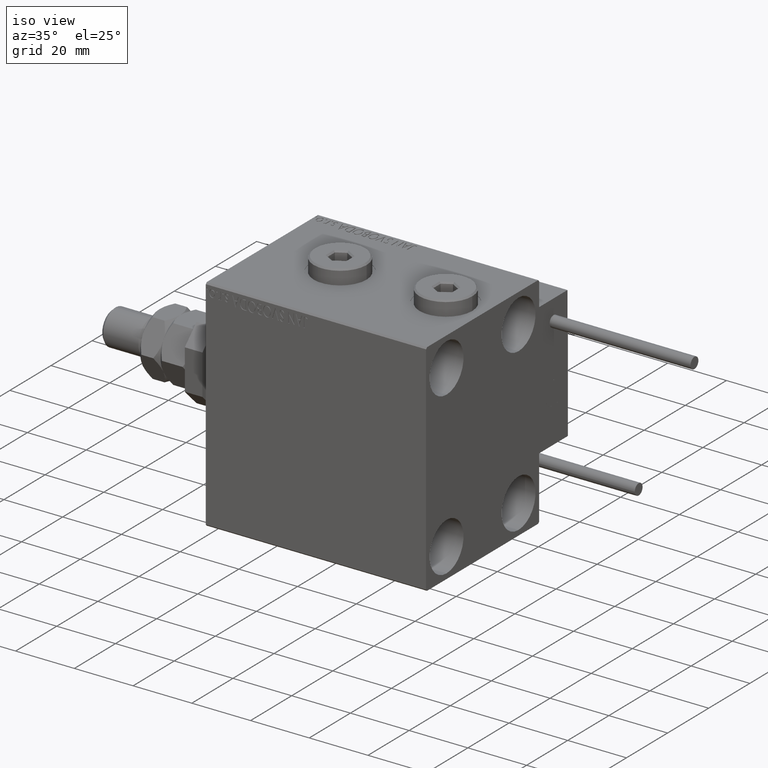
[diagram: clean part render]
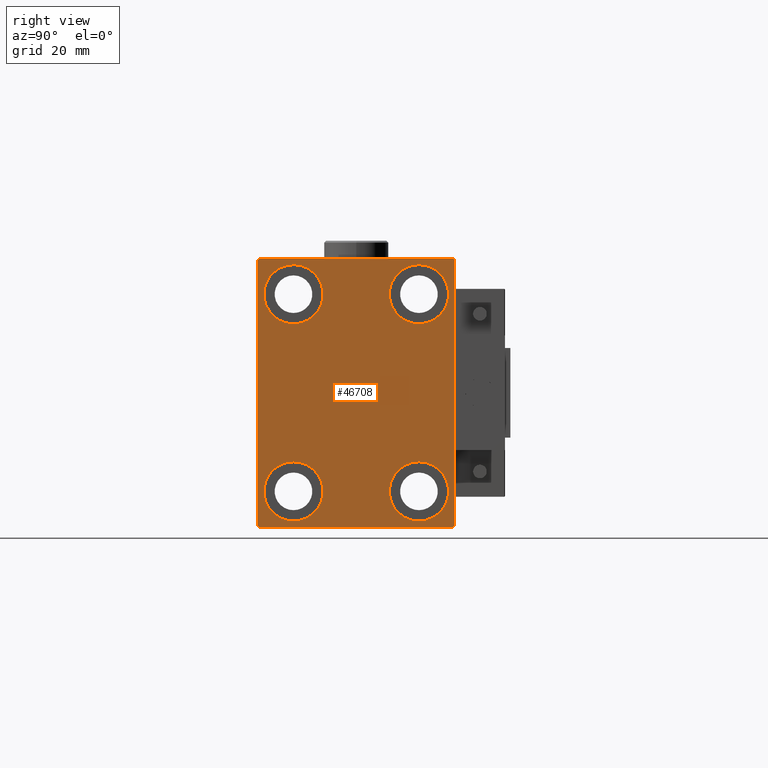
[diagram: tour spotlight — one face highlighted and labeled with its STEP entity id]
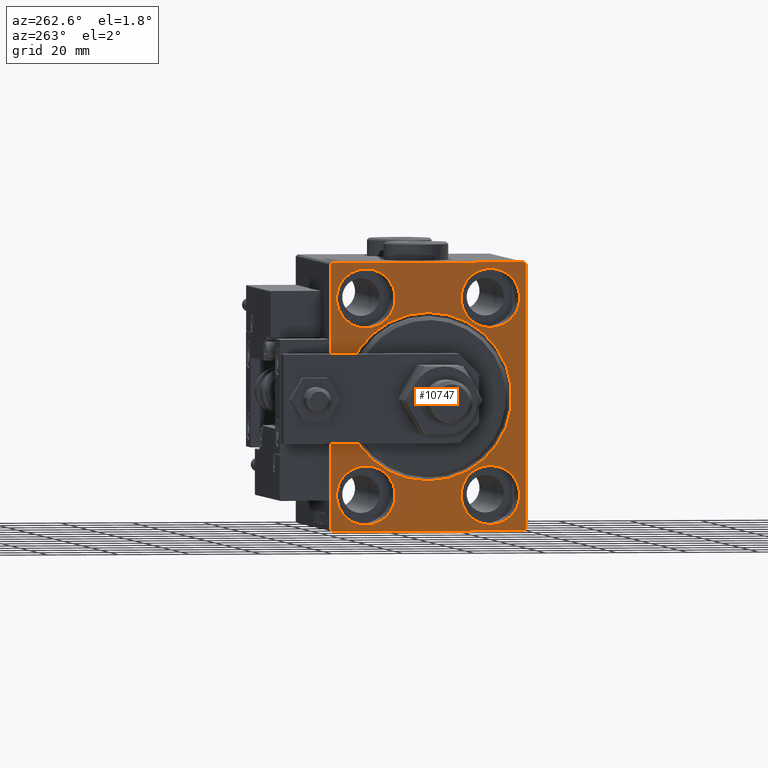
[diagram: tour spotlight — one face highlighted and labeled with its STEP entity id]
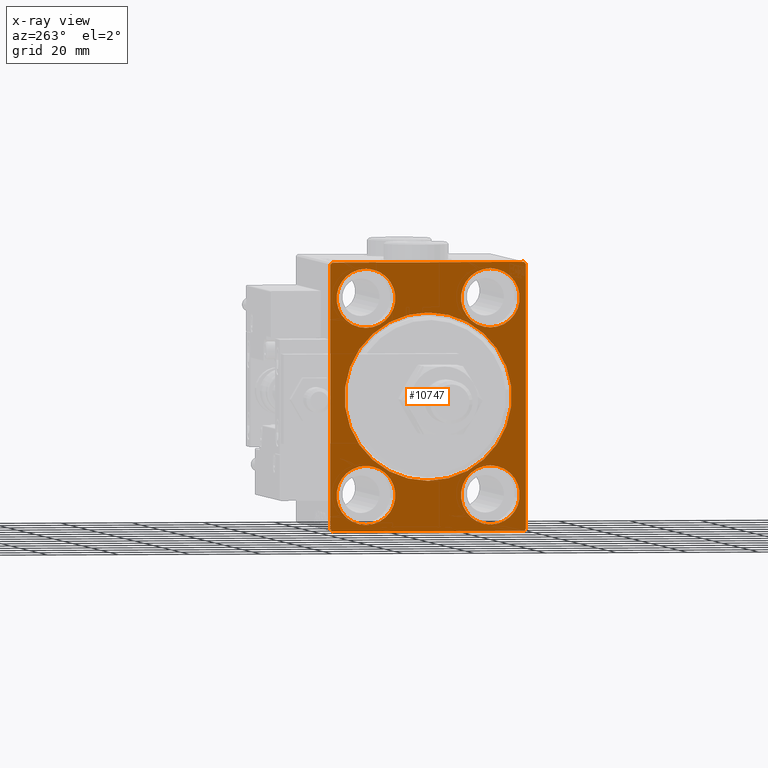
[diagram: x-ray of the same camera — body ghosted, this tour face saturated]
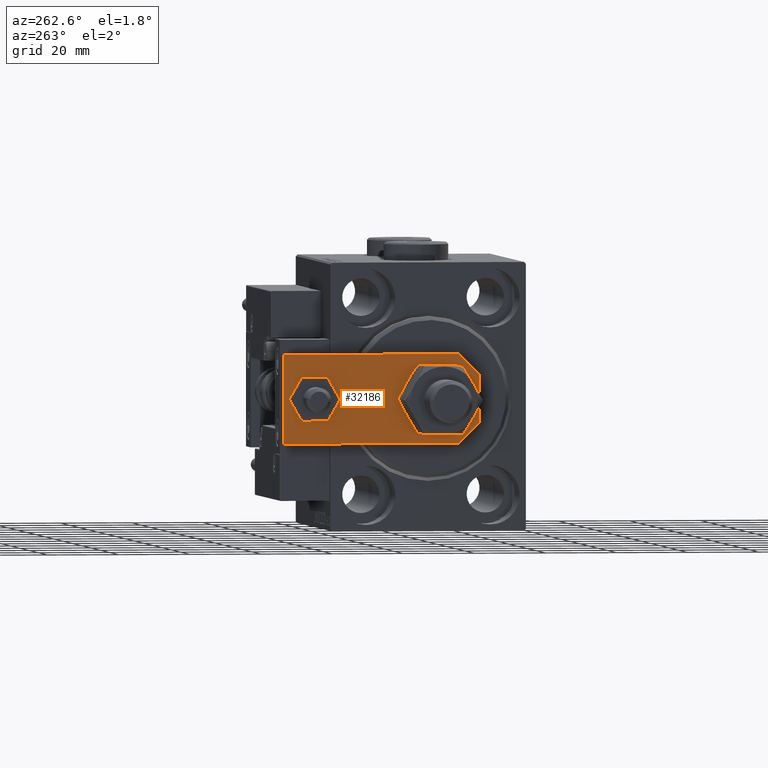
[diagram: tour spotlight — one face highlighted and labeled with its STEP entity id]
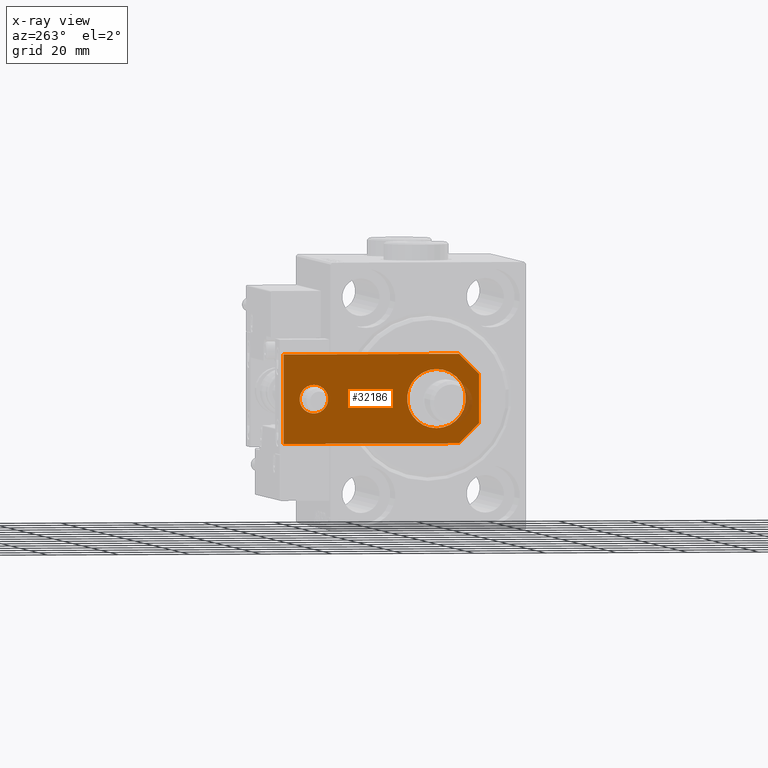
[diagram: x-ray of the same camera — body ghosted, this tour face saturated]
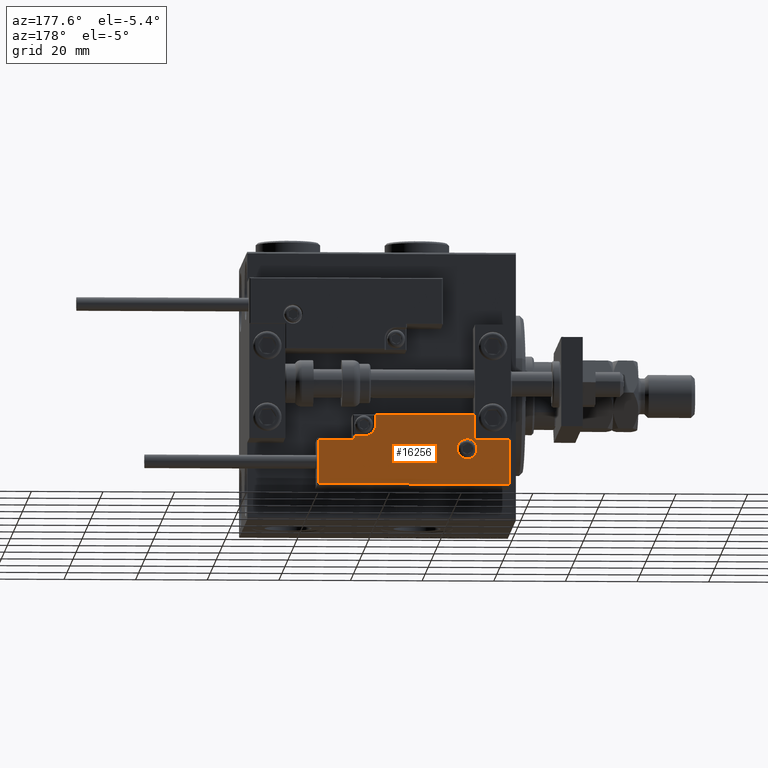
[diagram: tour spotlight — one face highlighted and labeled with its STEP entity id]
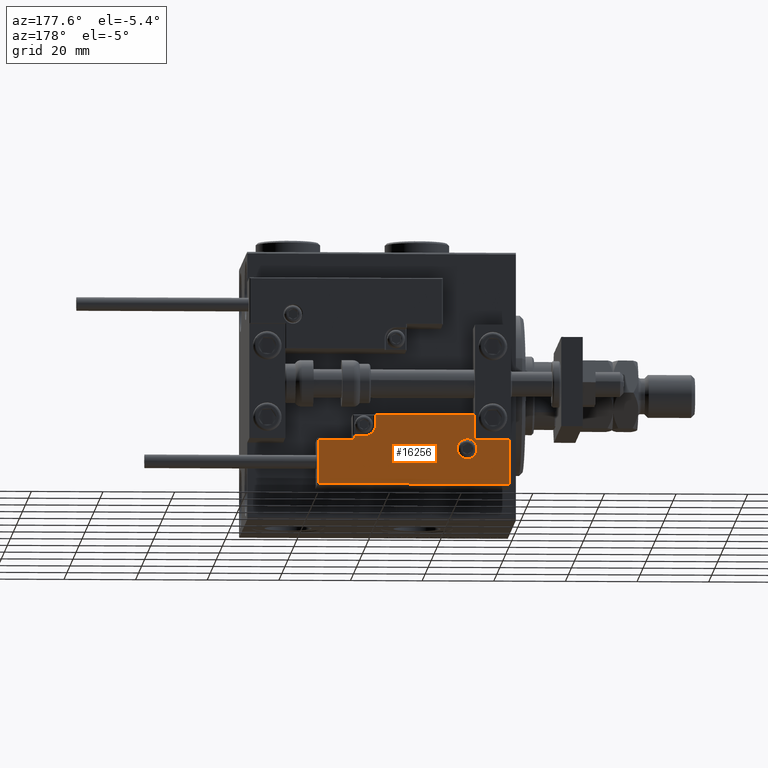
[diagram: tour spotlight — one face highlighted and labeled with its STEP entity id]
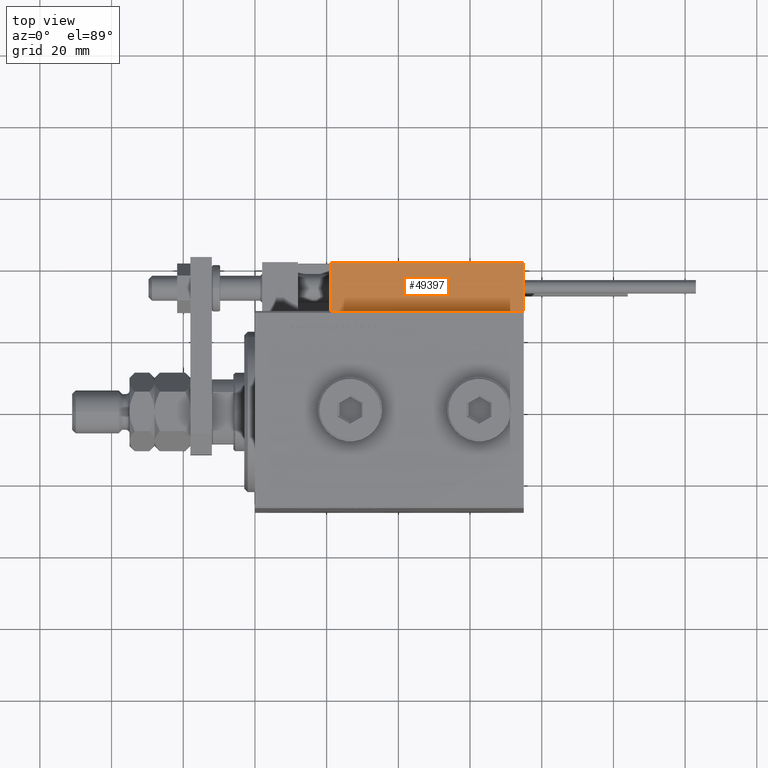
[diagram: tour spotlight — one face highlighted and labeled with its STEP entity id]
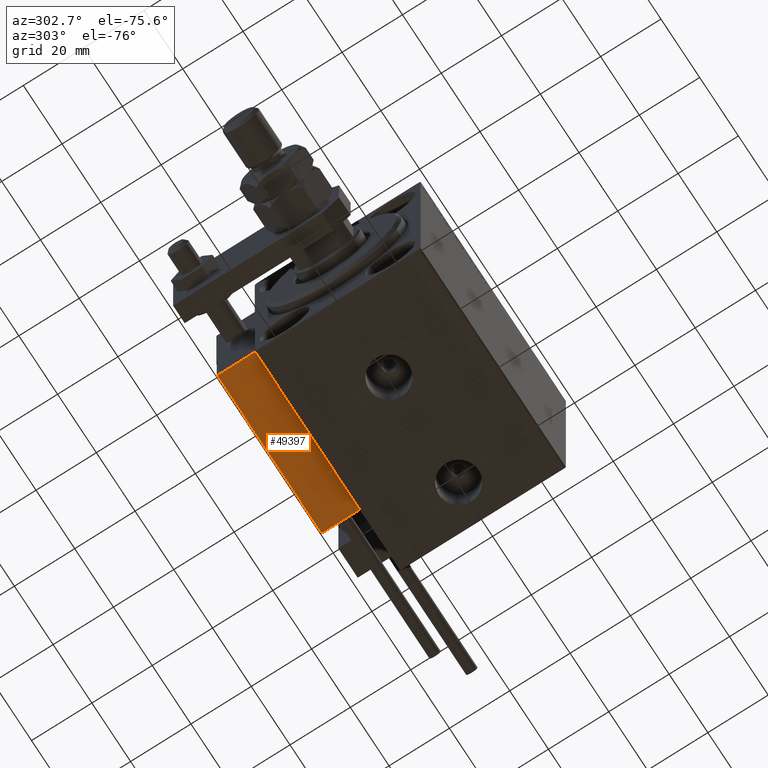
[diagram: tour spotlight — one face highlighted and labeled with its STEP entity id]
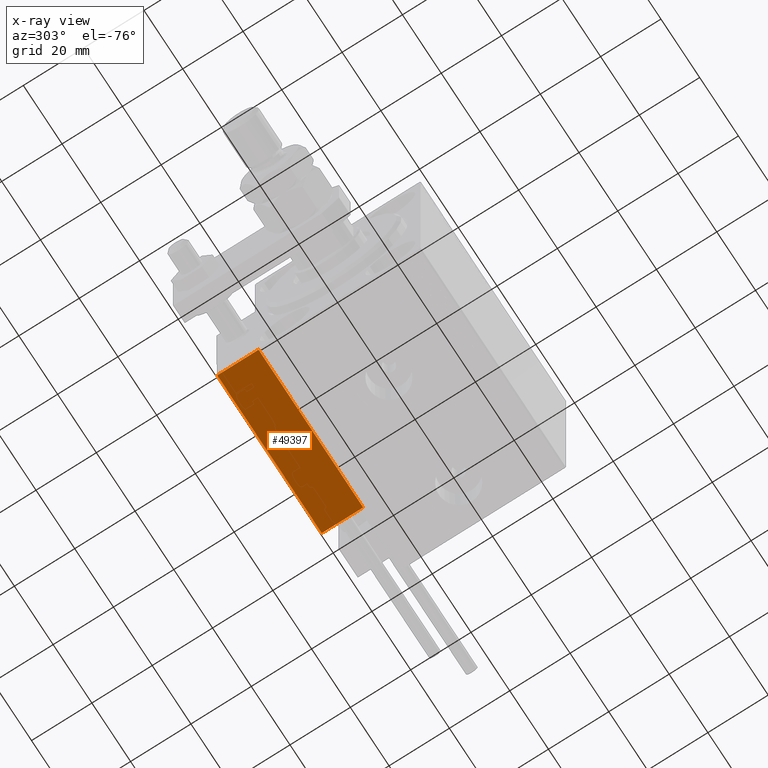
[diagram: x-ray of the same camera — body ghosted, this tour face saturated]
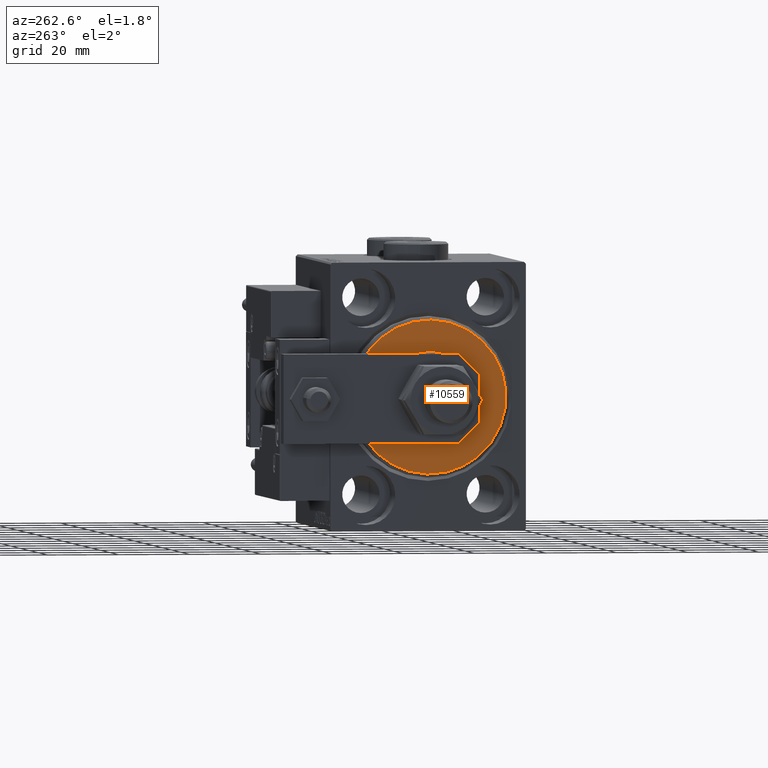
[diagram: tour spotlight — one face highlighted and labeled with its STEP entity id]
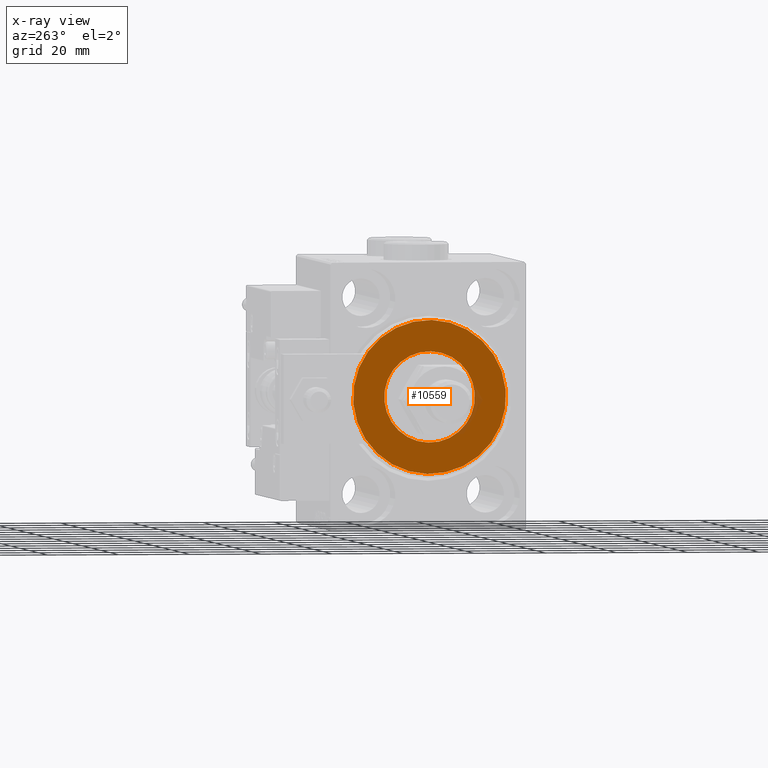
[diagram: x-ray of the same camera — body ghosted, this tour face saturated]
A machine part: a face-by-face anatomy tour. The part has 1385 B-rep faces; the first image is the clean iso view, then the 8 largest visible faces are spotlighted one at a time (largest first), each with its STEP entity span.

Face 1 — right view, entity #46708. In plain terms, the highlighted planar face has unit normal (1, 0, 0).
Definition (entity closure, byte-faithful):
#641 = CIRCLE ( 'NONE', #25481, 8.249999999999992895 ) ;
#695 = EDGE_CURVE ( 'NONE', #18131, #38794, #30434, .T. ) ;
#698 = CARTESIAN_POINT ( 'NONE',  ( 75.00000000000000000, 27.49999999999999645, 37.00000000000001421 ) ) ;
#1380 = EDGE_CURVE ( 'NONE', #16778, #51650, #7773, .T. ) ;
#1389 = ORIENTED_EDGE ( 'NONE', *, *, #51545, .T. ) ;
#1426 = AXIS2_PLACEMENT_3D ( 'NONE', #16869, #20663, #33245 ) ;
#1437 = EDGE_CURVE ( 'NONE', #4688, #47583, #20088, .T. ) ;
#1555 = ORIENTED_EDGE ( 'NONE', *, *, #47293, .T. ) ;
#2213 = CIRCLE ( 'NONE', #29637, 8.250000000000000000 ) ;
#2725 = CARTESIAN_POINT ( 'NONE',  ( 75.00000000000000000, -17.49999999999999645, 27.49999999999999645 ) ) ;
#4341 = VERTEX_POINT ( 'NONE', #45971 ) ;
#4637 = EDGE_CURVE ( 'NONE', #49361, #4341, #42537, .T. ) ;
#4688 = VERTEX_POINT ( 'NONE', #20108 ) ;
#5796 = EDGE_CURVE ( 'NONE', #48805, #44070, #38351, .T. ) ;
#6575 = EDGE_CURVE ( 'NONE', #30531, #47742, #2213, .T. ) ;
#6778 = DIRECTION ( 'NONE',  ( 0.000000000000000000, 0.000000000000000000, 1.000000000000000000 ) ) ;
#7180 = DIRECTION ( 'NONE',  ( 0.000000000000000000, 0.000000000000000000, 1.000000000000000000 ) ) ;
#7232 = DIRECTION ( 'NONE',  ( 0.000000000000000000, -1.000000000000000000, -1.261617073437677999E-16 ) ) ;
#7716 = CARTESIAN_POINT ( 'NONE',  ( 75.00000000000000000, 17.50000000000000355, 27.49999999999999645 ) ) ;
#7773 = LINE ( 'NONE', #35648, #31274 ) ;
#8576 = ORIENTED_EDGE ( 'NONE', *, *, #27790, .T. ) ;
#9077 = VECTOR ( 'NONE', #7232, 1000.000000000000000 ) ;
#9396 = DIRECTION ( 'NONE',  ( 0.000000000000000000, 1.000000000000000000, 0.000000000000000000 ) ) ;
#9409 = CARTESIAN_POINT ( 'NONE',  ( 75.00000000000000000, -32.25000000000000000, -32.25000000000000000 ) ) ;
#9681 = CARTESIAN_POINT ( 'NONE',  ( 75.00000000000000000, -17.50000000000000355, -19.25000000000000355 ) ) ;
#10051 = DIRECTION ( 'NONE',  ( -0.000000000000000000, 0.7071067811865474617, 0.7071067811865474617 ) ) ;
#10467 = VERTEX_POINT ( 'NONE', #23820 ) ;
#10736 = ORIENTED_EDGE ( 'NONE', *, *, #1437, .T. ) ;
#11489 = ORIENTED_EDGE ( 'NONE', *, *, #36335, .T. ) ;
#12032 = CARTESIAN_POINT ( 'NONE',  ( 75.00000000000000000, -17.50000000000000355, -27.50000000000000355 ) ) ;
#12317 = ORIENTED_EDGE ( 'NONE', *, *, #695, .T. ) ;
#12690 = VECTOR ( 'NONE', #38366, 1000.000000000000114 ) ;
#13807 = LINE ( 'NONE', #46855, #47028 ) ;
#14527 = CARTESIAN_POINT ( 'NONE',  ( 75.00000000000000000, 32.25000000000019185, 32.24999999999975131 ) ) ;
#14592 = DIRECTION ( 'NONE',  ( 0.000000000000000000, 0.000000000000000000, 1.000000000000000000 ) ) ;
#15243 = PLANE ( 'NONE',  #28523 ) ;
#15408 = ORIENTED_EDGE ( 'NONE', *, *, #6575, .T. ) ;
#15581 = CIRCLE ( 'NONE', #31859, 8.250000000000000000 ) ;
#15834 = DIRECTION ( 'NONE',  ( -1.000000000000000000, -0.000000000000000000, -0.000000000000000000 ) ) ;
#15897 = VECTOR ( 'NONE', #9396, 1000.000000000000000 ) ;
#16627 = CARTESIAN_POINT ( 'NONE',  ( 75.00000000000000000, -27.50000000000000355, -37.00000000000000000 ) ) ;
#16696 = AXIS2_PLACEMENT_3D ( 'NONE', #34989, #51439, #14592 ) ;
#16778 = VERTEX_POINT ( 'NONE', #22874 ) ;
#16796 = VERTEX_POINT ( 'NONE', #16627 ) ;
#16869 = CARTESIAN_POINT ( 'NONE',  ( 75.00000000000000000, -17.49999999999999645, 27.49999999999999645 ) ) ;
#18036 = DIRECTION ( 'NONE',  ( -1.000000000000000000, -0.000000000000000000, -0.000000000000000000 ) ) ;
#18131 = VERTEX_POINT ( 'NONE', #47508 ) ;
#18494 = ORIENTED_EDGE ( 'NONE', *, *, #51475, .T. ) ;
#19260 = DIRECTION ( 'NONE',  ( -1.000000000000000000, -0.000000000000000000, -0.000000000000000000 ) ) ;
#19538 = CIRCLE ( 'NONE', #37561, 8.249999999999992895 ) ;
#20088 = LINE ( 'NONE', #23877, #9077 ) ;
#20108 = CARTESIAN_POINT ( 'NONE',  ( 75.00000000000000000, 27.00000000000001066, 37.50000000000000711 ) ) ;
#20663 = DIRECTION ( 'NONE',  ( -1.000000000000000000, -0.000000000000000000, -0.000000000000000000 ) ) ;
#22360 = LINE ( 'NONE', #14527, #47782 ) ;
#22874 = CARTESIAN_POINT ( 'NONE',  ( 75.00000000000000000, 27.50000000000000355, -37.00000000000000000 ) ) ;
#23009 = DIRECTION ( 'NONE',  ( -1.000000000000000000, -0.000000000000000000, -0.000000000000000000 ) ) ;
#23268 = DIRECTION ( 'NONE',  ( 0.000000000000000000, 0.000000000000000000, 1.000000000000000000 ) ) ;
#23680 = ORIENTED_EDGE ( 'NONE', *, *, #29849, .T. ) ;
#23820 = CARTESIAN_POINT ( 'NONE',  ( 75.00000000000000000, -27.50000000000000355, 37.00000000000001421 ) ) ;
#23877 = CARTESIAN_POINT ( 'NONE',  ( 75.00000000000000000, 27.49999999999999645, 37.50000000000000711 ) ) ;
#25481 = AXIS2_PLACEMENT_3D ( 'NONE', #47584, #18036, #6778 ) ;
#25612 = EDGE_CURVE ( 'NONE', #52397, #29894, #31493, .T. ) ;
#25873 = CARTESIAN_POINT ( 'NONE',  ( 75.00000000000000000, -27.00000000000000355, -37.50000000000000000 ) ) ;
#26170 = EDGE_LOOP ( 'NONE', ( #1555, #15408 ) ) ;
#26615 = EDGE_LOOP ( 'NONE', ( #10736, #18494, #11489, #31816, #34626, #23680, #46484, #8576 ) ) ;
#26767 = CARTESIAN_POINT ( 'NONE',  ( 75.00000000000000000, -27.50000000000000355, 37.50000000000000000 ) ) ;
#26931 = EDGE_CURVE ( 'NONE', #4341, #49361, #19538, .T. ) ;
#27074 = EDGE_CURVE ( 'NONE', #16796, #48805, #50774, .T. ) ;
#27617 = DIRECTION ( 'NONE',  ( 0.000000000000000000, 0.000000000000000000, -1.000000000000000000 ) ) ;
#27790 = EDGE_CURVE ( 'NONE', #51650, #4688, #22360, .T. ) ;
#27883 = EDGE_CURVE ( 'NONE', #29894, #52397, #641, .T. ) ;
#27889 = ORIENTED_EDGE ( 'NONE', *, *, #26931, .T. ) ;
#28103 = DIRECTION ( 'NONE',  ( -1.000000000000000000, -0.000000000000000000, -0.000000000000000000 ) ) ;
#28523 = AXIS2_PLACEMENT_3D ( 'NONE', #44522, #43451, #27617 ) ;
#29637 = AXIS2_PLACEMENT_3D ( 'NONE', #12032, #19260, #48042 ) ;
#29849 = EDGE_CURVE ( 'NONE', #44070, #16778, #13807, .T. ) ;
#29894 = VERTEX_POINT ( 'NONE', #51161 ) ;
#30434 = CIRCLE ( 'NONE', #16696, 8.250000000000000000 ) ;
#30531 = VERTEX_POINT ( 'NONE', #9681 ) ;
#31146 = VECTOR ( 'NONE', #49185, 1000.000000000000114 ) ;
#31274 = VECTOR ( 'NONE', #48587, 1000.000000000000000 ) ;
#31288 = LINE ( 'NONE', #26767, #35011 ) ;
#31493 = CIRCLE ( 'NONE', #50460, 8.249999999999992895 ) ;
#31816 = ORIENTED_EDGE ( 'NONE', *, *, #27074, .T. ) ;
#31859 = AXIS2_PLACEMENT_3D ( 'NONE', #33125, #49300, #52807 ) ;
#32135 = FACE_BOUND ( 'NONE', #43199, .T. ) ;
#32418 = FACE_BOUND ( 'NONE', #40350, .T. ) ;
#32495 = CARTESIAN_POINT ( 'NONE',  ( 75.00000000000000000, -32.25000000000000711, 32.25000000000000711 ) ) ;
#33125 = CARTESIAN_POINT ( 'NONE',  ( 75.00000000000000000, -17.50000000000000355, -27.50000000000000355 ) ) ;
#33214 = ORIENTED_EDGE ( 'NONE', *, *, #4637, .T. ) ;
#33245 = DIRECTION ( 'NONE',  ( 0.000000000000000000, 0.000000000000000000, 1.000000000000000000 ) ) ;
#34626 = ORIENTED_EDGE ( 'NONE', *, *, #5796, .T. ) ;
#34989 = CARTESIAN_POINT ( 'NONE',  ( 75.00000000000000000, 17.49999999999999645, -27.50000000000000355 ) ) ;
#35011 = VECTOR ( 'NONE', #43114, 1000.000000000000000 ) ;
#35648 = CARTESIAN_POINT ( 'NONE',  ( 75.00000000000000000, 27.50000000000000355, -37.50000000000000000 ) ) ;
#36335 = EDGE_CURVE ( 'NONE', #10467, #16796, #31288, .T. ) ;
#37561 = AXIS2_PLACEMENT_3D ( 'NONE', #2725, #15834, #51876 ) ;
#37829 = CARTESIAN_POINT ( 'NONE',  ( 75.00000000000000000, -27.50000000000000355, -37.50000000000000000 ) ) ;
#38351 = LINE ( 'NONE', #37829, #15897 ) ;
#38366 = DIRECTION ( 'NONE',  ( -0.000000000000000000, 0.7071067811865474617, -0.7071067811865474617 ) ) ;
#38440 = DIRECTION ( 'NONE',  ( -0.000000000000000000, -0.7071067811865426878, 0.7071067811865524577 ) ) ;
#38522 = CARTESIAN_POINT ( 'NONE',  ( 75.00000000000000000, -17.49999999999999645, 35.74999999999999289 ) ) ;
#38794 = VERTEX_POINT ( 'NONE', #53151 ) ;
#39412 = FACE_BOUND ( 'NONE', #26170, .T. ) ;
#39949 = ORIENTED_EDGE ( 'NONE', *, *, #25612, .T. ) ;
#40350 = EDGE_LOOP ( 'NONE', ( #39949, #40806 ) ) ;
#40806 = ORIENTED_EDGE ( 'NONE', *, *, #27883, .T. ) ;
#41439 = AXIS2_PLACEMENT_3D ( 'NONE', #47190, #23009, #23268 ) ;
#42537 = CIRCLE ( 'NONE', #1426, 8.249999999999992895 ) ;
#43114 = DIRECTION ( 'NONE',  ( 0.000000000000000000, 0.000000000000000000, -1.000000000000000000 ) ) ;
#43199 = EDGE_LOOP ( 'NONE', ( #12317, #1389 ) ) ;
#43451 = DIRECTION ( 'NONE',  ( 1.000000000000000000, 0.000000000000000000, 0.000000000000000000 ) ) ;
#44070 = VERTEX_POINT ( 'NONE', #52111 ) ;
#44522 = CARTESIAN_POINT ( 'NONE',  ( 75.00000000000000000, 0.000000000000000000, 0.000000000000000000 ) ) ;
#44856 = CARTESIAN_POINT ( 'NONE',  ( 75.00000000000000000, -27.00000000000001776, 37.50000000000000000 ) ) ;
#45773 = CIRCLE ( 'NONE', #41439, 8.250000000000000000 ) ;
#45971 = CARTESIAN_POINT ( 'NONE',  ( 75.00000000000000000, -17.49999999999999645, 19.25000000000000000 ) ) ;
#46484 = ORIENTED_EDGE ( 'NONE', *, *, #1380, .T. ) ;
#46708 = ADVANCED_FACE ( 'NONE', ( #32135, #52880, #32418, #39412, #52079 ), #15243, .T. ) ;
#46855 = CARTESIAN_POINT ( 'NONE',  ( 75.00000000000000000, 32.25000000000000000, -32.25000000000000000 ) ) ;
#47028 = VECTOR ( 'NONE', #10051, 1000.000000000000114 ) ;
#47190 = CARTESIAN_POINT ( 'NONE',  ( 75.00000000000000000, 17.49999999999999645, -27.50000000000000355 ) ) ;
#47293 = EDGE_CURVE ( 'NONE', #47742, #30531, #15581, .T. ) ;
#47508 = CARTESIAN_POINT ( 'NONE',  ( 75.00000000000000000, 17.49999999999999645, -35.75000000000000711 ) ) ;
#47583 = VERTEX_POINT ( 'NONE', #44856 ) ;
#47584 = CARTESIAN_POINT ( 'NONE',  ( 75.00000000000000000, 17.50000000000000355, 27.49999999999999645 ) ) ;
#47742 = VERTEX_POINT ( 'NONE', #49449 ) ;
#47782 = VECTOR ( 'NONE', #38440, 1000.000000000000000 ) ;
#48042 = DIRECTION ( 'NONE',  ( 0.000000000000000000, 0.000000000000000000, 1.000000000000000000 ) ) ;
#48587 = DIRECTION ( 'NONE',  ( 0.000000000000000000, -9.251858538542970348E-17, 1.000000000000000000 ) ) ;
#48805 = VERTEX_POINT ( 'NONE', #25873 ) ;
#49185 = DIRECTION ( 'NONE',  ( 0.000000000000000000, -0.7071067811865474617, -0.7071067811865474617 ) ) ;
#49300 = DIRECTION ( 'NONE',  ( -1.000000000000000000, -0.000000000000000000, -0.000000000000000000 ) ) ;
#49361 = VERTEX_POINT ( 'NONE', #38522 ) ;
#49449 = CARTESIAN_POINT ( 'NONE',  ( 75.00000000000000000, -17.50000000000000355, -35.75000000000000711 ) ) ;
#49459 = CARTESIAN_POINT ( 'NONE',  ( 75.00000000000000000, 17.50000000000000355, 19.25000000000000000 ) ) ;
#50460 = AXIS2_PLACEMENT_3D ( 'NONE', #7716, #28103, #7180 ) ;
#50774 = LINE ( 'NONE', #9409, #12690 ) ;
#51161 = CARTESIAN_POINT ( 'NONE',  ( 75.00000000000000000, 17.50000000000000355, 35.74999999999999289 ) ) ;
#51439 = DIRECTION ( 'NONE',  ( -1.000000000000000000, -0.000000000000000000, -0.000000000000000000 ) ) ;
#51475 = EDGE_CURVE ( 'NONE', #47583, #10467, #52958, .T. ) ;
#51545 = EDGE_CURVE ( 'NONE', #38794, #18131, #45773, .T. ) ;
#51650 = VERTEX_POINT ( 'NONE', #698 ) ;
#51876 = DIRECTION ( 'NONE',  ( 0.000000000000000000, 0.000000000000000000, 1.000000000000000000 ) ) ;
#51916 = EDGE_LOOP ( 'NONE', ( #27889, #33214 ) ) ;
#52079 = FACE_OUTER_BOUND ( 'NONE', #26615, .T. ) ;
#52111 = CARTESIAN_POINT ( 'NONE',  ( 75.00000000000000000, 27.00000000000000355, -37.50000000000000000 ) ) ;
#52397 = VERTEX_POINT ( 'NONE', #49459 ) ;
#52807 = DIRECTION ( 'NONE',  ( 0.000000000000000000, 0.000000000000000000, 1.000000000000000000 ) ) ;
#52880 = FACE_BOUND ( 'NONE', #51916, .T. ) ;
#52958 = LINE ( 'NONE', #32495, #31146 ) ;
#53151 = CARTESIAN_POINT ( 'NONE',  ( 75.00000000000000000, 17.49999999999999645, -19.25000000000000355 ) ) ;

Face 2 — auxiliary view, entity #10747. An x-ray twin of the same camera follows (body ghosted, this face saturated) — the face is partly hidden behind the body. In plain terms, the highlighted planar face has unit normal (1, 0, 0).
Definition (entity closure, byte-faithful):
#11 = VECTOR ( 'NONE', #4733, 1000.000000000000114 ) ;
#130 = CARTESIAN_POINT ( 'NONE',  ( 0.000000000000000000, 27.50000000000000355, -37.50000000000000000 ) ) ;
#284 = AXIS2_PLACEMENT_3D ( 'NONE', #41364, #32782, #36253 ) ;
#391 = ORIENTED_EDGE ( 'NONE', *, *, #22698, .T. ) ;
#840 = LINE ( 'NONE', #49976, #40874 ) ;
#871 = CARTESIAN_POINT ( 'NONE',  ( 0.000000000000000000, -27.50000000000000355, -37.50000000000000000 ) ) ;
#1083 = DIRECTION ( 'NONE',  ( -1.000000000000000000, 0.000000000000000000, 0.000000000000000000 ) ) ;
#1101 = DIRECTION ( 'NONE',  ( -1.000000000000000000, 0.000000000000000000, 0.000000000000000000 ) ) ;
#1285 = DIRECTION ( 'NONE',  ( 0.000000000000000000, 0.000000000000000000, 1.000000000000000000 ) ) ;
#1350 = VECTOR ( 'NONE', #20502, 1000.000000000000000 ) ;
#1743 = EDGE_CURVE ( 'NONE', #43316, #13058, #20765, .T. ) ;
#1855 = CARTESIAN_POINT ( 'NONE',  ( 0.000000000000000000, 27.50000000000000355, -37.00000000000000000 ) ) ;
#3243 = DIRECTION ( 'NONE',  ( -1.000000000000000000, 0.000000000000000000, 0.000000000000000000 ) ) ;
#3325 = DIRECTION ( 'NONE',  ( -1.000000000000000000, 0.000000000000000000, 0.000000000000000000 ) ) ;
#4733 = DIRECTION ( 'NONE',  ( -0.000000000000000000, 0.7071067811865474617, 0.7071067811865474617 ) ) ;
#5039 = CARTESIAN_POINT ( 'NONE',  ( 0.000000000000000000, -27.50000000000000355, 37.00000000000001421 ) ) ;
#5093 = DIRECTION ( 'NONE',  ( 0.000000000000000000, -0.7071067811865474617, -0.7071067811865474617 ) ) ;
#5122 = DIRECTION ( 'NONE',  ( 0.000000000000000000, 0.000000000000000000, 1.000000000000000000 ) ) ;
#5239 = VECTOR ( 'NONE', #5093, 1000.000000000000114 ) ;
#5592 = CARTESIAN_POINT ( 'NONE',  ( 0.000000000000000000, -17.49999999999999645, 27.49999999999999645 ) ) ;
#6593 = CIRCLE ( 'NONE', #16811, 8.250000000000000000 ) ;
#6917 = VERTEX_POINT ( 'NONE', #36905 ) ;
#7182 = DIRECTION ( 'NONE',  ( -1.000000000000000000, 0.000000000000000000, 0.000000000000000000 ) ) ;
#7577 = VERTEX_POINT ( 'NONE', #29481 ) ;
#7815 = VERTEX_POINT ( 'NONE', #39611 ) ;
#7862 = EDGE_CURVE ( 'NONE', #51376, #26787, #25438, .T. ) ;
#7888 = CARTESIAN_POINT ( 'NONE',  ( 0.000000000000000000, 17.49999999999999645, -27.50000000000000355 ) ) ;
#7918 = FACE_BOUND ( 'NONE', #17134, .T. ) ;
#8265 = ORIENTED_EDGE ( 'NONE', *, *, #28235, .F. ) ;
#8407 = ORIENTED_EDGE ( 'NONE', *, *, #10385, .F. ) ;
#8548 = AXIS2_PLACEMENT_3D ( 'NONE', #7888, #3325, #10841 ) ;
#8726 = CARTESIAN_POINT ( 'NONE',  ( 0.000000000000000000, 17.49999999999999645, -19.25000000000000355 ) ) ;
#8974 = ORIENTED_EDGE ( 'NONE', *, *, #13103, .F. ) ;
#9128 = EDGE_CURVE ( 'NONE', #18498, #48084, #46814, .T. ) ;
#9251 = EDGE_CURVE ( 'NONE', #10874, #13058, #840, .T. ) ;
#10385 = EDGE_CURVE ( 'NONE', #16004, #21895, #51295, .T. ) ;
#10747 = ADVANCED_FACE ( 'NONE', ( #7918, #24290, #40626, #52513, #11933, #23492 ), #15153, .F. ) ;
#10841 = DIRECTION ( 'NONE',  ( 0.000000000000000000, 0.000000000000000000, 1.000000000000000000 ) ) ;
#10874 = VERTEX_POINT ( 'NONE', #30106 ) ;
#11030 = CARTESIAN_POINT ( 'NONE',  ( 0.000000000000000000, -17.49999999999999645, 27.49999999999999645 ) ) ;
#11038 = CIRCLE ( 'NONE', #34173, 8.249999999999992895 ) ;
#11245 = ORIENTED_EDGE ( 'NONE', *, *, #17581, .F. ) ;
#11763 = CARTESIAN_POINT ( 'NONE',  ( 0.000000000000000000, 27.49999999999999645, 37.50000000000000711 ) ) ;
#11933 = FACE_BOUND ( 'NONE', #34165, .T. ) ;
#12156 = EDGE_LOOP ( 'NONE', ( #25245, #44798 ) ) ;
#12834 = CARTESIAN_POINT ( 'NONE',  ( 0.000000000000000000, 17.50000000000000355, 35.74999999999999289 ) ) ;
#13058 = VERTEX_POINT ( 'NONE', #41790 ) ;
#13103 = EDGE_CURVE ( 'NONE', #21895, #16004, #35050, .T. ) ;
#13530 = EDGE_CURVE ( 'NONE', #26927, #14472, #11038, .T. ) ;
#13548 = CARTESIAN_POINT ( 'NONE',  ( 0.000000000000000000, -27.50000000000000355, 37.50000000000000000 ) ) ;
#13946 = ORIENTED_EDGE ( 'NONE', *, *, #1743, .F. ) ;
#14472 = VERTEX_POINT ( 'NONE', #46858 ) ;
#14928 = DIRECTION ( 'NONE',  ( 0.000000000000000000, 0.000000000000000000, -1.000000000000000000 ) ) ;
#15058 = ORIENTED_EDGE ( 'NONE', *, *, #9251, .T. ) ;
#15153 = PLANE ( 'NONE',  #34974 ) ;
#15167 = VECTOR ( 'NONE', #39676, 1000.000000000000000 ) ;
#15246 = VECTOR ( 'NONE', #21866, 1000.000000000000000 ) ;
#15492 = ORIENTED_EDGE ( 'NONE', *, *, #41652, .T. ) ;
#15531 = LINE ( 'NONE', #11763, #15167 ) ;
#15683 = DIRECTION ( 'NONE',  ( 1.000000000000000000, 0.000000000000000000, 0.000000000000000000 ) ) ;
#16004 = VERTEX_POINT ( 'NONE', #30058 ) ;
#16391 = ORIENTED_EDGE ( 'NONE', *, *, #24157, .F. ) ;
#16811 = AXIS2_PLACEMENT_3D ( 'NONE', #37824, #1083, #50489 ) ;
#17134 = EDGE_LOOP ( 'NONE', ( #391, #26052 ) ) ;
#17581 = EDGE_CURVE ( 'NONE', #20349, #45798, #29960, .T. ) ;
#17735 = ORIENTED_EDGE ( 'NONE', *, *, #49887, .F. ) ;
#17748 = VECTOR ( 'NONE', #17792, 1000.000000000000114 ) ;
#17792 = DIRECTION ( 'NONE',  ( -0.000000000000000000, -0.7071067811865474617, 0.7071067811865474617 ) ) ;
#17930 = ORIENTED_EDGE ( 'NONE', *, *, #38402, .T. ) ;
#18498 = VERTEX_POINT ( 'NONE', #26561 ) ;
#18651 = CIRCLE ( 'NONE', #34056, 8.249999999999992895 ) ;
#19370 = ORIENTED_EDGE ( 'NONE', *, *, #46537, .F. ) ;
#19395 = ORIENTED_EDGE ( 'NONE', *, *, #23297, .F. ) ;
#19682 = CARTESIAN_POINT ( 'NONE',  ( 0.000000000000000000, -17.50000000000000355, -19.25000000000000355 ) ) ;
#20349 = VERTEX_POINT ( 'NONE', #39167 ) ;
#20502 = DIRECTION ( 'NONE',  ( 0.000000000000000000, -9.251858538542970348E-17, 1.000000000000000000 ) ) ;
#20765 = LINE ( 'NONE', #130, #1350 ) ;
#21211 = ORIENTED_EDGE ( 'NONE', *, *, #9128, .T. ) ;
#21866 = DIRECTION ( 'NONE',  ( 0.000000000000000000, 0.000000000000000000, -1.000000000000000000 ) ) ;
#21895 = VERTEX_POINT ( 'NONE', #12834 ) ;
#21964 = DIRECTION ( 'NONE',  ( 0.000000000000000000, 0.000000000000000000, 1.000000000000000000 ) ) ;
#22120 = EDGE_LOOP ( 'NONE', ( #19370, #11245 ) ) ;
#22698 = EDGE_CURVE ( 'NONE', #26787, #51376, #23704, .T. ) ;
#23297 = EDGE_CURVE ( 'NONE', #52100, #7577, #6593, .T. ) ;
#23492 = FACE_OUTER_BOUND ( 'NONE', #44523, .T. ) ;
#23704 = CIRCLE ( 'NONE', #41698, 23.50000000000000355 ) ;
#23758 = DIRECTION ( 'NONE',  ( 0.000000000000000000, 0.000000000000000000, -1.000000000000000000 ) ) ;
#24157 = EDGE_CURVE ( 'NONE', #18498, #7815, #25013, .T. ) ;
#24290 = FACE_BOUND ( 'NONE', #22120, .T. ) ;
#24777 = CARTESIAN_POINT ( 'NONE',  ( 0.000000000000000000, 27.50000000000000355, -37.00000000000000000 ) ) ;
#25013 = LINE ( 'NONE', #871, #50343 ) ;
#25245 = ORIENTED_EDGE ( 'NONE', *, *, #29593, .F. ) ;
#25438 = CIRCLE ( 'NONE', #48595, 23.50000000000000355 ) ;
#25680 = AXIS2_PLACEMENT_3D ( 'NONE', #30247, #46646, #1285 ) ;
#26052 = ORIENTED_EDGE ( 'NONE', *, *, #7862, .T. ) ;
#26561 = CARTESIAN_POINT ( 'NONE',  ( 0.000000000000000000, -27.00000000000000355, -37.50000000000000000 ) ) ;
#26787 = VERTEX_POINT ( 'NONE', #49239 ) ;
#26845 = CIRCLE ( 'NONE', #38805, 8.250000000000000000 ) ;
#26927 = VERTEX_POINT ( 'NONE', #52401 ) ;
#27225 = AXIS2_PLACEMENT_3D ( 'NONE', #39890, #7182, #44484 ) ;
#27366 = EDGE_CURVE ( 'NONE', #49951, #48084, #38226, .T. ) ;
#28168 = ORIENTED_EDGE ( 'NONE', *, *, #27366, .F. ) ;
#28235 = EDGE_CURVE ( 'NONE', #10874, #6917, #15531, .T. ) ;
#29422 = LINE ( 'NONE', #45545, #11 ) ;
#29481 = CARTESIAN_POINT ( 'NONE',  ( 0.000000000000000000, -17.50000000000000355, -35.75000000000000711 ) ) ;
#29593 = EDGE_CURVE ( 'NONE', #14472, #26927, #18651, .T. ) ;
#29960 = CIRCLE ( 'NONE', #8548, 8.250000000000000000 ) ;
#30001 = CARTESIAN_POINT ( 'NONE',  ( 0.000000000000000000, -27.50000000000000355, -37.00000000000000000 ) ) ;
#30058 = CARTESIAN_POINT ( 'NONE',  ( 0.000000000000000000, 17.50000000000000355, 19.25000000000000000 ) ) ;
#30106 = CARTESIAN_POINT ( 'NONE',  ( 0.000000000000000000, 27.00000000000001066, 37.50000000000000711 ) ) ;
#30247 = CARTESIAN_POINT ( 'NONE',  ( 0.000000000000000000, 17.50000000000000355, 27.49999999999999645 ) ) ;
#32210 = DIRECTION ( 'NONE',  ( 0.000000000000000000, 0.000000000000000000, 1.000000000000000000 ) ) ;
#32782 = DIRECTION ( 'NONE',  ( -1.000000000000000000, 0.000000000000000000, 0.000000000000000000 ) ) ;
#33540 = DIRECTION ( 'NONE',  ( -0.000000000000000000, 0.7071067811865426878, -0.7071067811865524577 ) ) ;
#34017 = DIRECTION ( 'NONE',  ( -1.000000000000000000, 0.000000000000000000, 0.000000000000000000 ) ) ;
#34056 = AXIS2_PLACEMENT_3D ( 'NONE', #5592, #34017, #21964 ) ;
#34165 = EDGE_LOOP ( 'NONE', ( #19395, #17735 ) ) ;
#34173 = AXIS2_PLACEMENT_3D ( 'NONE', #11030, #3243, #32210 ) ;
#34974 = AXIS2_PLACEMENT_3D ( 'NONE', #39824, #15683, #23758 ) ;
#35050 = CIRCLE ( 'NONE', #25680, 8.249999999999992895 ) ;
#36253 = DIRECTION ( 'NONE',  ( 0.000000000000000000, 0.000000000000000000, 1.000000000000000000 ) ) ;
#36773 = CARTESIAN_POINT ( 'NONE',  ( 0.000000000000000000, 2.877919977996280715E-15, -23.50000000000000355 ) ) ;
#36905 = CARTESIAN_POINT ( 'NONE',  ( 0.000000000000000000, -27.00000000000001776, 37.50000000000000000 ) ) ;
#37824 = CARTESIAN_POINT ( 'NONE',  ( 0.000000000000000000, -17.50000000000000355, -27.50000000000000355 ) ) ;
#37966 = CIRCLE ( 'NONE', #284, 8.250000000000000000 ) ;
#38226 = LINE ( 'NONE', #13548, #15246 ) ;
#38402 = EDGE_CURVE ( 'NONE', #49951, #6917, #29422, .T. ) ;
#38466 = CARTESIAN_POINT ( 'NONE',  ( 0.000000000000000000, -27.00000000000000355, -37.50000000000000000 ) ) ;
#38491 = DIRECTION ( 'NONE',  ( 0.000000000000000000, 0.000000000000000000, -1.000000000000000000 ) ) ;
#38599 = LINE ( 'NONE', #1855, #5239 ) ;
#38805 = AXIS2_PLACEMENT_3D ( 'NONE', #46197, #1101, #5122 ) ;
#39167 = CARTESIAN_POINT ( 'NONE',  ( 0.000000000000000000, 17.49999999999999645, -35.75000000000000711 ) ) ;
#39611 = CARTESIAN_POINT ( 'NONE',  ( 0.000000000000000000, 27.00000000000000355, -37.50000000000000000 ) ) ;
#39676 = DIRECTION ( 'NONE',  ( 0.000000000000000000, -1.000000000000000000, -1.261617073437677999E-16 ) ) ;
#39824 = CARTESIAN_POINT ( 'NONE',  ( 0.000000000000000000, 0.000000000000000000, 0.000000000000000000 ) ) ;
#39890 = CARTESIAN_POINT ( 'NONE',  ( 0.000000000000000000, 17.50000000000000355, 27.49999999999999645 ) ) ;
#40626 = FACE_BOUND ( 'NONE', #12156, .T. ) ;
#40874 = VECTOR ( 'NONE', #33540, 1000.000000000000000 ) ;
#41364 = CARTESIAN_POINT ( 'NONE',  ( 0.000000000000000000, -17.50000000000000355, -27.50000000000000355 ) ) ;
#41652 = EDGE_CURVE ( 'NONE', #43316, #7815, #38599, .T. ) ;
#41698 = AXIS2_PLACEMENT_3D ( 'NONE', #49560, #45513, #38491 ) ;
#41790 = CARTESIAN_POINT ( 'NONE',  ( 0.000000000000000000, 27.49999999999999645, 37.00000000000001421 ) ) ;
#43316 = VERTEX_POINT ( 'NONE', #24777 ) ;
#44484 = DIRECTION ( 'NONE',  ( 0.000000000000000000, 0.000000000000000000, 1.000000000000000000 ) ) ;
#44523 = EDGE_LOOP ( 'NONE', ( #28168, #17930, #8265, #15058, #13946, #15492, #16391, #21211 ) ) ;
#44798 = ORIENTED_EDGE ( 'NONE', *, *, #13530, .F. ) ;
#45513 = DIRECTION ( 'NONE',  ( 1.000000000000000000, 0.000000000000000000, 0.000000000000000000 ) ) ;
#45545 = CARTESIAN_POINT ( 'NONE',  ( 0.000000000000000000, -27.50000000000000355, 37.00000000000001421 ) ) ;
#45798 = VERTEX_POINT ( 'NONE', #8726 ) ;
#46197 = CARTESIAN_POINT ( 'NONE',  ( 0.000000000000000000, 17.49999999999999645, -27.50000000000000355 ) ) ;
#46537 = EDGE_CURVE ( 'NONE', #45798, #20349, #26845, .T. ) ;
#46646 = DIRECTION ( 'NONE',  ( -1.000000000000000000, 0.000000000000000000, 0.000000000000000000 ) ) ;
#46814 = LINE ( 'NONE', #38466, #17748 ) ;
#46858 = CARTESIAN_POINT ( 'NONE',  ( 0.000000000000000000, -17.49999999999999645, 35.74999999999999289 ) ) ;
#47988 = DIRECTION ( 'NONE',  ( 1.000000000000000000, 0.000000000000000000, 0.000000000000000000 ) ) ;
#48084 = VERTEX_POINT ( 'NONE', #30001 ) ;
#48385 = EDGE_LOOP ( 'NONE', ( #8974, #8407 ) ) ;
#48595 = AXIS2_PLACEMENT_3D ( 'NONE', #48797, #47988, #14928 ) ;
#48797 = CARTESIAN_POINT ( 'NONE',  ( 0.000000000000000000, 0.000000000000000000, 0.000000000000000000 ) ) ;
#49239 = CARTESIAN_POINT ( 'NONE',  ( 0.000000000000000000, 0.000000000000000000, 23.50000000000000355 ) ) ;
#49560 = CARTESIAN_POINT ( 'NONE',  ( 0.000000000000000000, 0.000000000000000000, 0.000000000000000000 ) ) ;
#49887 = EDGE_CURVE ( 'NONE', #7577, #52100, #37966, .T. ) ;
#49951 = VERTEX_POINT ( 'NONE', #5039 ) ;
#49976 = CARTESIAN_POINT ( 'NONE',  ( 0.000000000000000000, 27.00000000000001066, 37.50000000000000711 ) ) ;
#50004 = DIRECTION ( 'NONE',  ( 0.000000000000000000, 1.000000000000000000, 0.000000000000000000 ) ) ;
#50343 = VECTOR ( 'NONE', #50004, 1000.000000000000000 ) ;
#50489 = DIRECTION ( 'NONE',  ( 0.000000000000000000, 0.000000000000000000, 1.000000000000000000 ) ) ;
#51295 = CIRCLE ( 'NONE', #27225, 8.249999999999992895 ) ;
#51376 = VERTEX_POINT ( 'NONE', #36773 ) ;
#52100 = VERTEX_POINT ( 'NONE', #19682 ) ;
#52401 = CARTESIAN_POINT ( 'NONE',  ( 0.000000000000000000, -17.49999999999999645, 19.25000000000000000 ) ) ;
#52513 = FACE_BOUND ( 'NONE', #48385, .T. ) ;

Face 3 — auxiliary view, entity #32186. An x-ray twin of the same camera follows (body ghosted, this face saturated) — the face is partly hidden behind the body. In plain terms, the highlighted planar face has unit normal (-1, 0, 0).
Definition (entity closure, byte-faithful):
#203 = DIRECTION ( 'NONE',  ( 1.000000000000000000, 0.000000000000000000, 0.000000000000000000 ) ) ;
#977 = LINE ( 'NONE', #5521, #48832 ) ;
#2179 = EDGE_CURVE ( 'NONE', #16843, #50584, #6208, .T. ) ;
#3111 = CIRCLE ( 'NONE', #33103, 8.250000000000000000 ) ;
#3777 = CARTESIAN_POINT ( 'NONE',  ( 12.50000000000000000, 55.00000000000000000, 6.000000000000000000 ) ) ;
#4722 = DIRECTION ( 'NONE',  ( 0.7071067811865483499, 0.7071067811865465735, -0.000000000000000000 ) ) ;
#4775 = ORIENTED_EDGE ( 'NONE', *, *, #53015, .T. ) ;
#5188 = CARTESIAN_POINT ( 'NONE',  ( -1.432611055310774642E-16, 46.50000000000000000, 6.000000000000000000 ) ) ;
#5521 = CARTESIAN_POINT ( 'NONE',  ( 3.419999999999990603, -3.419999999999999485, 6.000000000000000000 ) ) ;
#5567 = DIRECTION ( 'NONE',  ( 0.7071067811865467956, -0.7071067811865483499, 0.000000000000000000 ) ) ;
#6107 = CARTESIAN_POINT ( 'NONE',  ( -3.420000000000013696, -3.420000000000006146, 6.000000000000000000 ) ) ;
#6208 = LINE ( 'NONE', #14481, #21909 ) ;
#6735 = DIRECTION ( 'NONE',  ( -1.000000000000000000, 0.000000000000000000, 0.000000000000000000 ) ) ;
#6865 = FACE_BOUND ( 'NONE', #51314, .T. ) ;
#7113 = FACE_BOUND ( 'NONE', #31517, .T. ) ;
#7167 = VERTEX_POINT ( 'NONE', #18618 ) ;
#7774 = ORIENTED_EDGE ( 'NONE', *, *, #2179, .T. ) ;
#7781 = EDGE_CURVE ( 'NONE', #13086, #17386, #3111, .T. ) ;
#8046 = CARTESIAN_POINT ( 'NONE',  ( -1.432611055310774642E-16, 46.50000000000000000, 6.000000000000000000 ) ) ;
#8313 = ORIENTED_EDGE ( 'NONE', *, *, #26703, .F. ) ;
#8771 = CARTESIAN_POINT ( 'NONE',  ( -12.50000000000000355, 4.814824860968089633E-32, 6.000000000000000000 ) ) ;
#8935 = DIRECTION ( 'NONE',  ( 1.000000000000000000, 0.000000000000000000, 0.000000000000000000 ) ) ;
#9276 = CARTESIAN_POINT ( 'NONE',  ( -8.250000000000000000, 11.99999999999999645, 6.000000000000000000 ) ) ;
#10281 = LINE ( 'NONE', #14026, #42914 ) ;
#10557 = EDGE_CURVE ( 'NONE', #40018, #7167, #50406, .T. ) ;
#10600 = CARTESIAN_POINT ( 'NONE',  ( 0.000000000000000000, 0.000000000000000000, 6.000000000000000000 ) ) ;
#12038 = VERTEX_POINT ( 'NONE', #25160 ) ;
#13086 = VERTEX_POINT ( 'NONE', #25723 ) ;
#14026 = CARTESIAN_POINT ( 'NONE',  ( -12.49999999999999822, 55.00000000000000000, 6.000000000000000000 ) ) ;
#14481 = CARTESIAN_POINT ( 'NONE',  ( 12.50000000000000000, 55.00000000000000000, 6.000000000000000000 ) ) ;
#14605 = DIRECTION ( 'NONE',  ( 1.000000000000000000, 0.000000000000000000, 0.000000000000000000 ) ) ;
#15593 = ORIENTED_EDGE ( 'NONE', *, *, #7781, .F. ) ;
#16245 = EDGE_CURVE ( 'NONE', #29431, #16843, #41518, .T. ) ;
#16300 = ORIENTED_EDGE ( 'NONE', *, *, #40585, .T. ) ;
#16642 = VECTOR ( 'NONE', #5567, 1000.000000000000000 ) ;
#16843 = VERTEX_POINT ( 'NONE', #3777 ) ;
#16960 = AXIS2_PLACEMENT_3D ( 'NONE', #5188, #24789, #8935 ) ;
#17386 = VERTEX_POINT ( 'NONE', #9276 ) ;
#18145 = LINE ( 'NONE', #6107, #16642 ) ;
#18242 = ORIENTED_EDGE ( 'NONE', *, *, #37527, .T. ) ;
#18618 = CARTESIAN_POINT ( 'NONE',  ( 6.839999999999998970, 4.814824860968089633E-32, 6.000000000000000000 ) ) ;
#19432 = DIRECTION ( 'NONE',  ( -0.000000000000000000, 0.000000000000000000, 1.000000000000000000 ) ) ;
#20097 = ORIENTED_EDGE ( 'NONE', *, *, #16245, .T. ) ;
#20593 = AXIS2_PLACEMENT_3D ( 'NONE', #21632, #46608, #14605 ) ;
#21291 = VECTOR ( 'NONE', #203, 1000.000000000000000 ) ;
#21632 = CARTESIAN_POINT ( 'NONE',  ( -9.629649721936179265E-32, 11.99999999999999645, 6.000000000000000000 ) ) ;
#21909 = VECTOR ( 'NONE', #6735, 1000.000000000000000 ) ;
#22210 = AXIS2_PLACEMENT_3D ( 'NONE', #10600, #19432, #35789 ) ;
#24647 = CARTESIAN_POINT ( 'NONE',  ( 12.50000000000000355, 4.814824860968089633E-32, 6.000000000000000000 ) ) ;
#24702 = VERTEX_POINT ( 'NONE', #48881 ) ;
#24789 = DIRECTION ( 'NONE',  ( 0.000000000000000000, 0.000000000000000000, 1.000000000000000000 ) ) ;
#25160 = CARTESIAN_POINT ( 'NONE',  ( -4.000000000000000888, 46.50000000000000000, 6.000000000000000000 ) ) ;
#25723 = CARTESIAN_POINT ( 'NONE',  ( 8.250000000000000000, 11.99999999999999822, 6.000000000000000000 ) ) ;
#26414 = ORIENTED_EDGE ( 'NONE', *, *, #41546, .F. ) ;
#26703 = EDGE_CURVE ( 'NONE', #38725, #12038, #28141, .T. ) ;
#28141 = CIRCLE ( 'NONE', #16960, 4.000000000000000888 ) ;
#29028 = ORIENTED_EDGE ( 'NONE', *, *, #10557, .T. ) ;
#29431 = VERTEX_POINT ( 'NONE', #44811 ) ;
#31517 = EDGE_LOOP ( 'NONE', ( #49717, #15593 ) ) ;
#32186 = ADVANCED_FACE ( 'NONE', ( #6865, #35525, #7113 ), #39305, .T. ) ;
#33103 = AXIS2_PLACEMENT_3D ( 'NONE', #36368, #48504, #48245 ) ;
#35525 = FACE_OUTER_BOUND ( 'NONE', #41973, .T. ) ;
#35789 = DIRECTION ( 'NONE',  ( 1.000000000000000000, 0.000000000000000000, 0.000000000000000000 ) ) ;
#36002 = CIRCLE ( 'NONE', #20593, 8.250000000000000000 ) ;
#36368 = CARTESIAN_POINT ( 'NONE',  ( -9.629649721936179265E-32, 11.99999999999999645, 6.000000000000000000 ) ) ;
#37527 = EDGE_CURVE ( 'NONE', #7167, #29431, #977, .T. ) ;
#37793 = CIRCLE ( 'NONE', #51555, 4.000000000000000888 ) ;
#38725 = VERTEX_POINT ( 'NONE', #42146 ) ;
#39305 = PLANE ( 'NONE',  #22210 ) ;
#39453 = EDGE_CURVE ( 'NONE', #17386, #13086, #36002, .T. ) ;
#40018 = VERTEX_POINT ( 'NONE', #48811 ) ;
#40585 = EDGE_CURVE ( 'NONE', #50584, #24702, #10281, .T. ) ;
#41297 = DIRECTION ( 'NONE',  ( 0.000000000000000000, 0.000000000000000000, 1.000000000000000000 ) ) ;
#41518 = LINE ( 'NONE', #24647, #47953 ) ;
#41546 = EDGE_CURVE ( 'NONE', #12038, #38725, #37793, .T. ) ;
#41973 = EDGE_LOOP ( 'NONE', ( #16300, #4775, #29028, #18242, #20097, #7774 ) ) ;
#42146 = CARTESIAN_POINT ( 'NONE',  ( 4.000000000000000888, 46.50000000000000000, 6.000000000000000000 ) ) ;
#42753 = DIRECTION ( 'NONE',  ( -9.462128050782584375E-17, -1.000000000000000000, 0.000000000000000000 ) ) ;
#42914 = VECTOR ( 'NONE', #42753, 1000.000000000000000 ) ;
#44781 = CARTESIAN_POINT ( 'NONE',  ( -12.49999999999999822, 55.00000000000000000, 6.000000000000000000 ) ) ;
#44811 = CARTESIAN_POINT ( 'NONE',  ( 12.50000000000000355, 5.659999999999991260, 6.000000000000000000 ) ) ;
#45848 = DIRECTION ( 'NONE',  ( -6.308085367188389994E-17, 1.000000000000000000, 0.000000000000000000 ) ) ;
#46608 = DIRECTION ( 'NONE',  ( 0.000000000000000000, 0.000000000000000000, 1.000000000000000000 ) ) ;
#47953 = VECTOR ( 'NONE', #45848, 1000.000000000000000 ) ;
#48245 = DIRECTION ( 'NONE',  ( 1.000000000000000000, 0.000000000000000000, 0.000000000000000000 ) ) ;
#48504 = DIRECTION ( 'NONE',  ( 0.000000000000000000, 0.000000000000000000, 1.000000000000000000 ) ) ;
#48600 = DIRECTION ( 'NONE',  ( 1.000000000000000000, 0.000000000000000000, 0.000000000000000000 ) ) ;
#48811 = CARTESIAN_POINT ( 'NONE',  ( -6.840000000000012292, 4.814824860968089633E-32, 6.000000000000000000 ) ) ;
#48832 = VECTOR ( 'NONE', #4722, 1000.000000000000114 ) ;
#48881 = CARTESIAN_POINT ( 'NONE',  ( -12.50000000000000355, 5.660000000000005471, 6.000000000000000000 ) ) ;
#49717 = ORIENTED_EDGE ( 'NONE', *, *, #39453, .F. ) ;
#50406 = LINE ( 'NONE', #8771, #21291 ) ;
#50584 = VERTEX_POINT ( 'NONE', #44781 ) ;
#51314 = EDGE_LOOP ( 'NONE', ( #26414, #8313 ) ) ;
#51555 = AXIS2_PLACEMENT_3D ( 'NONE', #8046, #41297, #48600 ) ;
#53015 = EDGE_CURVE ( 'NONE', #24702, #40018, #18145, .T. ) ;

Face 4 — auxiliary view, entity #16256. In plain terms, the highlighted planar face has unit normal (0, 1, -0).
Definition (entity closure, byte-faithful):
#199 = EDGE_LOOP ( 'NONE', ( #16750, #44243, #44810, #35596, #7607, #23482, #46821, #6405, #13150, #21134, #31388 ) ) ;
#738 = VERTEX_POINT ( 'NONE', #8422 ) ;
#1114 = AXIS2_PLACEMENT_3D ( 'NONE', #21054, #25364, #38212 ) ;
#3558 = EDGE_CURVE ( 'NONE', #41269, #738, #49423, .T. ) ;
#3978 = LINE ( 'NONE', #11224, #10118 ) ;
#4024 = LINE ( 'NONE', #40232, #43621 ) ;
#4194 = VERTEX_POINT ( 'NONE', #22917 ) ;
#4430 = LINE ( 'NONE', #20793, #34468 ) ;
#5051 = CARTESIAN_POINT ( 'NONE',  ( 13.99999999999999822, 6.300000000000001599, 14.00000000000000000 ) ) ;
#5786 = EDGE_CURVE ( 'NONE', #43015, #50075, #45905, .T. ) ;
#5900 = DIRECTION ( 'NONE',  ( 1.000000000000000000, 0.000000000000000000, 0.000000000000000000 ) ) ;
#5939 = EDGE_CURVE ( 'NONE', #23153, #36235, #45093, .T. ) ;
#6405 = ORIENTED_EDGE ( 'NONE', *, *, #44902, .T. ) ;
#7607 = ORIENTED_EDGE ( 'NONE', *, *, #24624, .T. ) ;
#7752 = DIRECTION ( 'NONE',  ( 1.000000000000000000, -1.734723475976815230E-16, 0.000000000000000000 ) ) ;
#7926 = CARTESIAN_POINT ( 'NONE',  ( 16.69999999999999929, 7.300000000000009592, 14.00000000000000000 ) ) ;
#8100 = CARTESIAN_POINT ( 'NONE',  ( 17.00000000000000000, 6.300000000000003375, 14.00000000000000000 ) ) ;
#8422 = CARTESIAN_POINT ( 'NONE',  ( -11.99999999999994849, 9.800000000000004263, 14.00000000000000000 ) ) ;
#8478 = DIRECTION ( 'NONE',  ( -8.006416042969869188E-16, -1.000000000000000000, 0.000000000000000000 ) ) ;
#8720 = DIRECTION ( 'NONE',  ( 0.000000000000000000, 1.000000000000000000, -0.000000000000000000 ) ) ;
#8764 = LINE ( 'NONE', #9026, #12002 ) ;
#8799 = FACE_OUTER_BOUND ( 'NONE', #199, .T. ) ;
#9026 = CARTESIAN_POINT ( 'NONE',  ( 11.00000000000000000, 0.3000000000000032085, 14.00000000000000000 ) ) ;
#10118 = VECTOR ( 'NONE', #40188, 1000.000000000000000 ) ;
#10464 = VERTEX_POINT ( 'NONE', #43949 ) ;
#11224 = CARTESIAN_POINT ( 'NONE',  ( 10.69999999999999929, 3.000000000000003109, 14.00000000000000000 ) ) ;
#11565 = LINE ( 'NONE', #8100, #44354 ) ;
#11843 = DIRECTION ( 'NONE',  ( 1.000000000000000000, 5.782411586589357639E-16, -0.000000000000000000 ) ) ;
#12002 = VECTOR ( 'NONE', #28636, 1000.000000000000000 ) ;
#13150 = ORIENTED_EDGE ( 'NONE', *, *, #36876, .T. ) ;
#14772 = VECTOR ( 'NONE', #7752, 1000.000000000000000 ) ;
#15813 = DIRECTION ( 'NONE',  ( 0.000000000000000000, -1.000000000000000000, 0.000000000000000000 ) ) ;
#15860 = VERTEX_POINT ( 'NONE', #52942 ) ;
#16256 = ADVANCED_FACE ( 'NONE', ( #17098, #8799 ), #33466, .T. ) ;
#16575 = ORIENTED_EDGE ( 'NONE', *, *, #3558, .T. ) ;
#16750 = ORIENTED_EDGE ( 'NONE', *, *, #34180, .T. ) ;
#17098 = FACE_BOUND ( 'NONE', #46025, .T. ) ;
#17621 = VECTOR ( 'NONE', #42118, 1000.000000000000000 ) ;
#18720 = CARTESIAN_POINT ( 'NONE',  ( -26.69999999999993534, 19.70000000000002061, 14.00000000000000000 ) ) ;
#19254 = CARTESIAN_POINT ( 'NONE',  ( 10.69999999999999929, 0.3000000000000032085, 14.00000000000000000 ) ) ;
#19804 = CARTESIAN_POINT ( 'NONE',  ( -16.99999999999999289, 7.300000000000003375, 14.00000000000000000 ) ) ;
#20793 = CARTESIAN_POINT ( 'NONE',  ( 26.70000000000006324, 20.00000000000001776, 14.00000000000000000 ) ) ;
#21054 = CARTESIAN_POINT ( 'NONE',  ( -14.79999999999994920, 9.800000000000004263, 14.00000000000000000 ) ) ;
#21134 = ORIENTED_EDGE ( 'NONE', *, *, #36553, .T. ) ;
#21940 = AXIS2_PLACEMENT_3D ( 'NONE', #26299, #42636, #5900 ) ;
#22101 = VECTOR ( 'NONE', #39492, 1000.000000000000000 ) ;
#22917 = CARTESIAN_POINT ( 'NONE',  ( 26.70000000000006324, 19.70000000000001705, 14.00000000000000000 ) ) ;
#23056 = VECTOR ( 'NONE', #8478, 1000.000000000000000 ) ;
#23153 = VERTEX_POINT ( 'NONE', #49222 ) ;
#23482 = ORIENTED_EDGE ( 'NONE', *, *, #28825, .T. ) ;
#24481 = DIRECTION ( 'NONE',  ( 0.000000000000000000, -0.000000000000000000, -1.000000000000000000 ) ) ;
#24624 = EDGE_CURVE ( 'NONE', #36235, #45405, #11565, .T. ) ;
#24913 = DIRECTION ( 'NONE',  ( -0.000000000000000000, 0.000000000000000000, 1.000000000000000000 ) ) ;
#25024 = DIRECTION ( 'NONE',  ( 1.000000000000000000, 0.000000000000000000, 0.000000000000000000 ) ) ;
#25364 = DIRECTION ( 'NONE',  ( 0.000000000000000000, -0.000000000000000000, -1.000000000000000000 ) ) ;
#26299 = CARTESIAN_POINT ( 'NONE',  ( 13.99999999999999822, 3.000000000000002665, 14.00000000000000000 ) ) ;
#28340 = CARTESIAN_POINT ( 'NONE',  ( 26.70000000000006324, 7.300000000000007816, 14.00000000000000000 ) ) ;
#28636 = DIRECTION ( 'NONE',  ( 1.000000000000000000, -0.000000000000000000, 0.000000000000000000 ) ) ;
#28825 = EDGE_CURVE ( 'NONE', #45405, #43015, #31185, .T. ) ;
#28872 = LINE ( 'NONE', #45254, #23056 ) ;
#29719 = DIRECTION ( 'NONE',  ( 1.000000000000000000, 0.000000000000000000, 0.000000000000000000 ) ) ;
#31031 = CIRCLE ( 'NONE', #1114, 2.800000000000000266 ) ;
#31185 = LINE ( 'NONE', #47594, #22101 ) ;
#31388 = ORIENTED_EDGE ( 'NONE', *, *, #46712, .T. ) ;
#32498 = LINE ( 'NONE', #44858, #46221 ) ;
#33277 = DIRECTION ( 'NONE',  ( -1.000000000000000000, 6.424901762877063495E-17, -0.000000000000000000 ) ) ;
#33466 = PLANE ( 'NONE',  #52211 ) ;
#34180 = EDGE_CURVE ( 'NONE', #10464, #37791, #4024, .T. ) ;
#34468 = VECTOR ( 'NONE', #8720, 1000.000000000000000 ) ;
#35596 = ORIENTED_EDGE ( 'NONE', *, *, #5939, .T. ) ;
#36064 = VERTEX_POINT ( 'NONE', #19254 ) ;
#36092 = EDGE_CURVE ( 'NONE', #36064, #23153, #3978, .T. ) ;
#36235 = VERTEX_POINT ( 'NONE', #5051 ) ;
#36553 = EDGE_CURVE ( 'NONE', #41303, #15860, #28872, .T. ) ;
#36876 = EDGE_CURVE ( 'NONE', #4194, #41303, #32498, .T. ) ;
#37660 = CARTESIAN_POINT ( 'NONE',  ( -16.69999999999999218, 0.3000000000000032085, 14.00000000000000000 ) ) ;
#37791 = VERTEX_POINT ( 'NONE', #37660 ) ;
#38212 = DIRECTION ( 'NONE',  ( 1.000000000000000000, 0.000000000000000000, 0.000000000000000000 ) ) ;
#38403 = ORIENTED_EDGE ( 'NONE', *, *, #44920, .T. ) ;
#39492 = DIRECTION ( 'NONE',  ( 9.912705577010318647E-16, 1.000000000000000000, 0.000000000000000000 ) ) ;
#39919 = LINE ( 'NONE', #19804, #14772 ) ;
#40188 = DIRECTION ( 'NONE',  ( -0.000000000000000000, 1.000000000000000000, -0.000000000000000000 ) ) ;
#40221 = EDGE_CURVE ( 'NONE', #37791, #36064, #8764, .T. ) ;
#40232 = CARTESIAN_POINT ( 'NONE',  ( -16.69999999999999218, 3.252606517456513302E-15, 14.00000000000000000 ) ) ;
#41254 = CARTESIAN_POINT ( 'NONE',  ( 0.000000000000000000, 0.000000000000000000, 14.00000000000000000 ) ) ;
#41269 = VERTEX_POINT ( 'NONE', #43422 ) ;
#41303 = VERTEX_POINT ( 'NONE', #18720 ) ;
#41371 = CARTESIAN_POINT ( 'NONE',  ( -14.79999999999994920, 9.800000000000004263, 14.00000000000000000 ) ) ;
#42118 = DIRECTION ( 'NONE',  ( 1.000000000000000000, -1.734723475976796001E-16, 0.000000000000000000 ) ) ;
#42636 = DIRECTION ( 'NONE',  ( 0.000000000000000000, -0.000000000000000000, -1.000000000000000000 ) ) ;
#42905 = CARTESIAN_POINT ( 'NONE',  ( 27.00000000000006395, 7.300000000000007816, 14.00000000000000000 ) ) ;
#43015 = VERTEX_POINT ( 'NONE', #7926 ) ;
#43422 = CARTESIAN_POINT ( 'NONE',  ( -17.59999999999994813, 9.800000000000004263, 14.00000000000000000 ) ) ;
#43621 = VECTOR ( 'NONE', #15813, 1000.000000000000000 ) ;
#43949 = CARTESIAN_POINT ( 'NONE',  ( -16.69999999999999218, 7.300000000000003375, 14.00000000000000000 ) ) ;
#44243 = ORIENTED_EDGE ( 'NONE', *, *, #40221, .T. ) ;
#44354 = VECTOR ( 'NONE', #11843, 1000.000000000000000 ) ;
#44810 = ORIENTED_EDGE ( 'NONE', *, *, #36092, .T. ) ;
#44858 = CARTESIAN_POINT ( 'NONE',  ( -26.99999999999993605, 19.70000000000002061, 14.00000000000000000 ) ) ;
#44902 = EDGE_CURVE ( 'NONE', #50075, #4194, #4430, .T. ) ;
#44920 = EDGE_CURVE ( 'NONE', #738, #41269, #31031, .T. ) ;
#45093 = CIRCLE ( 'NONE', #21940, 3.299999999999997158 ) ;
#45254 = CARTESIAN_POINT ( 'NONE',  ( -26.69999999999994600, 7.000000000000005329, 14.00000000000000000 ) ) ;
#45405 = VERTEX_POINT ( 'NONE', #51076 ) ;
#45905 = LINE ( 'NONE', #42905, #17621 ) ;
#46025 = EDGE_LOOP ( 'NONE', ( #38403, #16575 ) ) ;
#46221 = VECTOR ( 'NONE', #33277, 1000.000000000000000 ) ;
#46712 = EDGE_CURVE ( 'NONE', #15860, #10464, #39919, .T. ) ;
#46821 = ORIENTED_EDGE ( 'NONE', *, *, #5786, .T. ) ;
#47594 = CARTESIAN_POINT ( 'NONE',  ( 16.69999999999999929, 7.000000000000009770, 14.00000000000000000 ) ) ;
#48601 = AXIS2_PLACEMENT_3D ( 'NONE', #41371, #24481, #25024 ) ;
#49222 = CARTESIAN_POINT ( 'NONE',  ( 10.69999999999999929, 3.000000000000003109, 14.00000000000000000 ) ) ;
#49423 = CIRCLE ( 'NONE', #48601, 2.800000000000000266 ) ;
#50075 = VERTEX_POINT ( 'NONE', #28340 ) ;
#51076 = CARTESIAN_POINT ( 'NONE',  ( 16.69999999999999929, 6.300000000000003375, 14.00000000000000000 ) ) ;
#52211 = AXIS2_PLACEMENT_3D ( 'NONE', #41254, #24913, #29719 ) ;
#52942 = CARTESIAN_POINT ( 'NONE',  ( -26.69999999999994600, 7.300000000000005151, 14.00000000000000000 ) ) ;

Face 5 — auxiliary view, entity #16256. In plain terms, the highlighted planar face has unit normal (-0, 1, -0).
Definition (entity closure, byte-faithful):
#199 = EDGE_LOOP ( 'NONE', ( #16750, #44243, #44810, #35596, #7607, #23482, #46821, #6405, #13150, #21134, #31388 ) ) ;
#738 = VERTEX_POINT ( 'NONE', #8422 ) ;
#1114 = AXIS2_PLACEMENT_3D ( 'NONE', #21054, #25364, #38212 ) ;
#3558 = EDGE_CURVE ( 'NONE', #41269, #738, #49423, .T. ) ;
#3978 = LINE ( 'NONE', #11224, #10118 ) ;
#4024 = LINE ( 'NONE', #40232, #43621 ) ;
#4194 = VERTEX_POINT ( 'NONE', #22917 ) ;
#4430 = LINE ( 'NONE', #20793, #34468 ) ;
#5051 = CARTESIAN_POINT ( 'NONE',  ( 13.99999999999999822, 6.300000000000001599, 14.00000000000000000 ) ) ;
#5786 = EDGE_CURVE ( 'NONE', #43015, #50075, #45905, .T. ) ;
#5900 = DIRECTION ( 'NONE',  ( 1.000000000000000000, 0.000000000000000000, 0.000000000000000000 ) ) ;
#5939 = EDGE_CURVE ( 'NONE', #23153, #36235, #45093, .T. ) ;
#6405 = ORIENTED_EDGE ( 'NONE', *, *, #44902, .T. ) ;
#7607 = ORIENTED_EDGE ( 'NONE', *, *, #24624, .T. ) ;
#7752 = DIRECTION ( 'NONE',  ( 1.000000000000000000, -1.734723475976815230E-16, 0.000000000000000000 ) ) ;
#7926 = CARTESIAN_POINT ( 'NONE',  ( 16.69999999999999929, 7.300000000000009592, 14.00000000000000000 ) ) ;
#8100 = CARTESIAN_POINT ( 'NONE',  ( 17.00000000000000000, 6.300000000000003375, 14.00000000000000000 ) ) ;
#8422 = CARTESIAN_POINT ( 'NONE',  ( -11.99999999999994849, 9.800000000000004263, 14.00000000000000000 ) ) ;
#8478 = DIRECTION ( 'NONE',  ( -8.006416042969869188E-16, -1.000000000000000000, 0.000000000000000000 ) ) ;
#8720 = DIRECTION ( 'NONE',  ( 0.000000000000000000, 1.000000000000000000, -0.000000000000000000 ) ) ;
#8764 = LINE ( 'NONE', #9026, #12002 ) ;
#8799 = FACE_OUTER_BOUND ( 'NONE', #199, .T. ) ;
#9026 = CARTESIAN_POINT ( 'NONE',  ( 11.00000000000000000, 0.3000000000000032085, 14.00000000000000000 ) ) ;
#10118 = VECTOR ( 'NONE', #40188, 1000.000000000000000 ) ;
#10464 = VERTEX_POINT ( 'NONE', #43949 ) ;
#11224 = CARTESIAN_POINT ( 'NONE',  ( 10.69999999999999929, 3.000000000000003109, 14.00000000000000000 ) ) ;
#11565 = LINE ( 'NONE', #8100, #44354 ) ;
#11843 = DIRECTION ( 'NONE',  ( 1.000000000000000000, 5.782411586589357639E-16, -0.000000000000000000 ) ) ;
#12002 = VECTOR ( 'NONE', #28636, 1000.000000000000000 ) ;
#13150 = ORIENTED_EDGE ( 'NONE', *, *, #36876, .T. ) ;
#14772 = VECTOR ( 'NONE', #7752, 1000.000000000000000 ) ;
#15813 = DIRECTION ( 'NONE',  ( 0.000000000000000000, -1.000000000000000000, 0.000000000000000000 ) ) ;
#15860 = VERTEX_POINT ( 'NONE', #52942 ) ;
#16256 = ADVANCED_FACE ( 'NONE', ( #17098, #8799 ), #33466, .T. ) ;
#16575 = ORIENTED_EDGE ( 'NONE', *, *, #3558, .T. ) ;
#16750 = ORIENTED_EDGE ( 'NONE', *, *, #34180, .T. ) ;
#17098 = FACE_BOUND ( 'NONE', #46025, .T. ) ;
#17621 = VECTOR ( 'NONE', #42118, 1000.000000000000000 ) ;
#18720 = CARTESIAN_POINT ( 'NONE',  ( -26.69999999999993534, 19.70000000000002061, 14.00000000000000000 ) ) ;
#19254 = CARTESIAN_POINT ( 'NONE',  ( 10.69999999999999929, 0.3000000000000032085, 14.00000000000000000 ) ) ;
#19804 = CARTESIAN_POINT ( 'NONE',  ( -16.99999999999999289, 7.300000000000003375, 14.00000000000000000 ) ) ;
#20793 = CARTESIAN_POINT ( 'NONE',  ( 26.70000000000006324, 20.00000000000001776, 14.00000000000000000 ) ) ;
#21054 = CARTESIAN_POINT ( 'NONE',  ( -14.79999999999994920, 9.800000000000004263, 14.00000000000000000 ) ) ;
#21134 = ORIENTED_EDGE ( 'NONE', *, *, #36553, .T. ) ;
#21940 = AXIS2_PLACEMENT_3D ( 'NONE', #26299, #42636, #5900 ) ;
#22101 = VECTOR ( 'NONE', #39492, 1000.000000000000000 ) ;
#22917 = CARTESIAN_POINT ( 'NONE',  ( 26.70000000000006324, 19.70000000000001705, 14.00000000000000000 ) ) ;
#23056 = VECTOR ( 'NONE', #8478, 1000.000000000000000 ) ;
#23153 = VERTEX_POINT ( 'NONE', #49222 ) ;
#23482 = ORIENTED_EDGE ( 'NONE', *, *, #28825, .T. ) ;
#24481 = DIRECTION ( 'NONE',  ( 0.000000000000000000, -0.000000000000000000, -1.000000000000000000 ) ) ;
#24624 = EDGE_CURVE ( 'NONE', #36235, #45405, #11565, .T. ) ;
#24913 = DIRECTION ( 'NONE',  ( -0.000000000000000000, 0.000000000000000000, 1.000000000000000000 ) ) ;
#25024 = DIRECTION ( 'NONE',  ( 1.000000000000000000, 0.000000000000000000, 0.000000000000000000 ) ) ;
#25364 = DIRECTION ( 'NONE',  ( 0.000000000000000000, -0.000000000000000000, -1.000000000000000000 ) ) ;
#26299 = CARTESIAN_POINT ( 'NONE',  ( 13.99999999999999822, 3.000000000000002665, 14.00000000000000000 ) ) ;
#28340 = CARTESIAN_POINT ( 'NONE',  ( 26.70000000000006324, 7.300000000000007816, 14.00000000000000000 ) ) ;
#28636 = DIRECTION ( 'NONE',  ( 1.000000000000000000, -0.000000000000000000, 0.000000000000000000 ) ) ;
#28825 = EDGE_CURVE ( 'NONE', #45405, #43015, #31185, .T. ) ;
#28872 = LINE ( 'NONE', #45254, #23056 ) ;
#29719 = DIRECTION ( 'NONE',  ( 1.000000000000000000, 0.000000000000000000, 0.000000000000000000 ) ) ;
#31031 = CIRCLE ( 'NONE', #1114, 2.800000000000000266 ) ;
#31185 = LINE ( 'NONE', #47594, #22101 ) ;
#31388 = ORIENTED_EDGE ( 'NONE', *, *, #46712, .T. ) ;
#32498 = LINE ( 'NONE', #44858, #46221 ) ;
#33277 = DIRECTION ( 'NONE',  ( -1.000000000000000000, 6.424901762877063495E-17, -0.000000000000000000 ) ) ;
#33466 = PLANE ( 'NONE',  #52211 ) ;
#34180 = EDGE_CURVE ( 'NONE', #10464, #37791, #4024, .T. ) ;
#34468 = VECTOR ( 'NONE', #8720, 1000.000000000000000 ) ;
#35596 = ORIENTED_EDGE ( 'NONE', *, *, #5939, .T. ) ;
#36064 = VERTEX_POINT ( 'NONE', #19254 ) ;
#36092 = EDGE_CURVE ( 'NONE', #36064, #23153, #3978, .T. ) ;
#36235 = VERTEX_POINT ( 'NONE', #5051 ) ;
#36553 = EDGE_CURVE ( 'NONE', #41303, #15860, #28872, .T. ) ;
#36876 = EDGE_CURVE ( 'NONE', #4194, #41303, #32498, .T. ) ;
#37660 = CARTESIAN_POINT ( 'NONE',  ( -16.69999999999999218, 0.3000000000000032085, 14.00000000000000000 ) ) ;
#37791 = VERTEX_POINT ( 'NONE', #37660 ) ;
#38212 = DIRECTION ( 'NONE',  ( 1.000000000000000000, 0.000000000000000000, 0.000000000000000000 ) ) ;
#38403 = ORIENTED_EDGE ( 'NONE', *, *, #44920, .T. ) ;
#39492 = DIRECTION ( 'NONE',  ( 9.912705577010318647E-16, 1.000000000000000000, 0.000000000000000000 ) ) ;
#39919 = LINE ( 'NONE', #19804, #14772 ) ;
#40188 = DIRECTION ( 'NONE',  ( -0.000000000000000000, 1.000000000000000000, -0.000000000000000000 ) ) ;
#40221 = EDGE_CURVE ( 'NONE', #37791, #36064, #8764, .T. ) ;
#40232 = CARTESIAN_POINT ( 'NONE',  ( -16.69999999999999218, 3.252606517456513302E-15, 14.00000000000000000 ) ) ;
#41254 = CARTESIAN_POINT ( 'NONE',  ( 0.000000000000000000, 0.000000000000000000, 14.00000000000000000 ) ) ;
#41269 = VERTEX_POINT ( 'NONE', #43422 ) ;
#41303 = VERTEX_POINT ( 'NONE', #18720 ) ;
#41371 = CARTESIAN_POINT ( 'NONE',  ( -14.79999999999994920, 9.800000000000004263, 14.00000000000000000 ) ) ;
#42118 = DIRECTION ( 'NONE',  ( 1.000000000000000000, -1.734723475976796001E-16, 0.000000000000000000 ) ) ;
#42636 = DIRECTION ( 'NONE',  ( 0.000000000000000000, -0.000000000000000000, -1.000000000000000000 ) ) ;
#42905 = CARTESIAN_POINT ( 'NONE',  ( 27.00000000000006395, 7.300000000000007816, 14.00000000000000000 ) ) ;
#43015 = VERTEX_POINT ( 'NONE', #7926 ) ;
#43422 = CARTESIAN_POINT ( 'NONE',  ( -17.59999999999994813, 9.800000000000004263, 14.00000000000000000 ) ) ;
#43621 = VECTOR ( 'NONE', #15813, 1000.000000000000000 ) ;
#43949 = CARTESIAN_POINT ( 'NONE',  ( -16.69999999999999218, 7.300000000000003375, 14.00000000000000000 ) ) ;
#44243 = ORIENTED_EDGE ( 'NONE', *, *, #40221, .T. ) ;
#44354 = VECTOR ( 'NONE', #11843, 1000.000000000000000 ) ;
#44810 = ORIENTED_EDGE ( 'NONE', *, *, #36092, .T. ) ;
#44858 = CARTESIAN_POINT ( 'NONE',  ( -26.99999999999993605, 19.70000000000002061, 14.00000000000000000 ) ) ;
#44902 = EDGE_CURVE ( 'NONE', #50075, #4194, #4430, .T. ) ;
#44920 = EDGE_CURVE ( 'NONE', #738, #41269, #31031, .T. ) ;
#45093 = CIRCLE ( 'NONE', #21940, 3.299999999999997158 ) ;
#45254 = CARTESIAN_POINT ( 'NONE',  ( -26.69999999999994600, 7.000000000000005329, 14.00000000000000000 ) ) ;
#45405 = VERTEX_POINT ( 'NONE', #51076 ) ;
#45905 = LINE ( 'NONE', #42905, #17621 ) ;
#46025 = EDGE_LOOP ( 'NONE', ( #38403, #16575 ) ) ;
#46221 = VECTOR ( 'NONE', #33277, 1000.000000000000000 ) ;
#46712 = EDGE_CURVE ( 'NONE', #15860, #10464, #39919, .T. ) ;
#46821 = ORIENTED_EDGE ( 'NONE', *, *, #5786, .T. ) ;
#47594 = CARTESIAN_POINT ( 'NONE',  ( 16.69999999999999929, 7.000000000000009770, 14.00000000000000000 ) ) ;
#48601 = AXIS2_PLACEMENT_3D ( 'NONE', #41371, #24481, #25024 ) ;
#49222 = CARTESIAN_POINT ( 'NONE',  ( 10.69999999999999929, 3.000000000000003109, 14.00000000000000000 ) ) ;
#49423 = CIRCLE ( 'NONE', #48601, 2.800000000000000266 ) ;
#50075 = VERTEX_POINT ( 'NONE', #28340 ) ;
#51076 = CARTESIAN_POINT ( 'NONE',  ( 16.69999999999999929, 6.300000000000003375, 14.00000000000000000 ) ) ;
#52211 = AXIS2_PLACEMENT_3D ( 'NONE', #41254, #24913, #29719 ) ;
#52942 = CARTESIAN_POINT ( 'NONE',  ( -26.69999999999994600, 7.300000000000005151, 14.00000000000000000 ) ) ;

Face 6 — top view, entity #49397. In plain terms, the highlighted planar face has unit normal (-0, -0, -1).
Definition (entity closure, byte-faithful):
#3194 = LINE ( 'NONE', #23345, #35655 ) ;
#5419 = DIRECTION ( 'NONE',  ( -0.000000000000000000, -0.000000000000000000, -1.000000000000000000 ) ) ;
#7284 = VERTEX_POINT ( 'NONE', #22027 ) ;
#7414 = EDGE_CURVE ( 'NONE', #16921, #26517, #3194, .T. ) ;
#11630 = DIRECTION ( 'NONE',  ( -6.424901762877063495E-17, -1.000000000000000000, 0.000000000000000000 ) ) ;
#14238 = EDGE_CURVE ( 'NONE', #17554, #7284, #22741, .T. ) ;
#15130 = ORIENTED_EDGE ( 'NONE', *, *, #7414, .T. ) ;
#15183 = DIRECTION ( 'NONE',  ( -1.000000000000000000, 6.424901762877062263E-17, 0.000000000000000000 ) ) ;
#15662 = VECTOR ( 'NONE', #27314, 1000.000000000000000 ) ;
#16921 = VERTEX_POINT ( 'NONE', #37303 ) ;
#17554 = VERTEX_POINT ( 'NONE', #47917 ) ;
#20347 = ORIENTED_EDGE ( 'NONE', *, *, #14238, .T. ) ;
#22027 = CARTESIAN_POINT ( 'NONE',  ( -26.99999999999993605, 20.00000000000002132, 0.000000000000000000 ) ) ;
#22741 = LINE ( 'NONE', #52018, #53150 ) ;
#23345 = CARTESIAN_POINT ( 'NONE',  ( 27.00000000000006395, 20.00000000000001776, 13.70000000000000107 ) ) ;
#24161 = EDGE_CURVE ( 'NONE', #26517, #17554, #34093, .T. ) ;
#26517 = VERTEX_POINT ( 'NONE', #28864 ) ;
#27245 = PLANE ( 'NONE',  #49138 ) ;
#27314 = DIRECTION ( 'NONE',  ( -0.000000000000000000, -0.000000000000000000, -1.000000000000000000 ) ) ;
#28864 = CARTESIAN_POINT ( 'NONE',  ( 27.00000000000006395, 20.00000000000001776, 13.70000000000000107 ) ) ;
#29758 = VECTOR ( 'NONE', #5419, 1000.000000000000000 ) ;
#30092 = CARTESIAN_POINT ( 'NONE',  ( 27.00000000000006395, 20.00000000000001776, 14.00000000000000000 ) ) ;
#31589 = EDGE_LOOP ( 'NONE', ( #48188, #15130, #36323, #20347 ) ) ;
#31638 = DIRECTION ( 'NONE',  ( 1.000000000000000000, -6.424901762877063495E-17, -0.000000000000000000 ) ) ;
#31778 = CARTESIAN_POINT ( 'NONE',  ( 27.00000000000006395, 20.00000000000001776, 14.00000000000000000 ) ) ;
#34093 = LINE ( 'NONE', #30092, #29758 ) ;
#35655 = VECTOR ( 'NONE', #31638, 1000.000000000000000 ) ;
#36323 = ORIENTED_EDGE ( 'NONE', *, *, #24161, .T. ) ;
#37303 = CARTESIAN_POINT ( 'NONE',  ( -26.99999999999993605, 20.00000000000002132, 13.70000000000000107 ) ) ;
#43674 = LINE ( 'NONE', #44469, #15662 ) ;
#43870 = FACE_OUTER_BOUND ( 'NONE', #31589, .T. ) ;
#44469 = CARTESIAN_POINT ( 'NONE',  ( -26.99999999999993605, 20.00000000000002132, 14.00000000000000000 ) ) ;
#47917 = CARTESIAN_POINT ( 'NONE',  ( 27.00000000000006395, 20.00000000000001776, 0.000000000000000000 ) ) ;
#48188 = ORIENTED_EDGE ( 'NONE', *, *, #49156, .F. ) ;
#49138 = AXIS2_PLACEMENT_3D ( 'NONE', #31778, #11630, #52496 ) ;
#49156 = EDGE_CURVE ( 'NONE', #16921, #7284, #43674, .T. ) ;
#49397 = ADVANCED_FACE ( 'NONE', ( #43870 ), #27245, .F. ) ;
#52018 = CARTESIAN_POINT ( 'NONE',  ( 27.00000000000006395, 20.00000000000001776, 0.000000000000000000 ) ) ;
#52496 = DIRECTION ( 'NONE',  ( 1.000000000000000000, -6.424901762877063495E-17, 0.000000000000000000 ) ) ;
#53150 = VECTOR ( 'NONE', #15183, 1000.000000000000000 ) ;

Face 7 — auxiliary view, entity #49397. An x-ray twin of the same camera follows (body ghosted, this face saturated) — the face is partly hidden behind the body. In plain terms, the highlighted planar face has unit normal (0, 0, 1).
Definition (entity closure, byte-faithful):
#3194 = LINE ( 'NONE', #23345, #35655 ) ;
#5419 = DIRECTION ( 'NONE',  ( -0.000000000000000000, -0.000000000000000000, -1.000000000000000000 ) ) ;
#7284 = VERTEX_POINT ( 'NONE', #22027 ) ;
#7414 = EDGE_CURVE ( 'NONE', #16921, #26517, #3194, .T. ) ;
#11630 = DIRECTION ( 'NONE',  ( -6.424901762877063495E-17, -1.000000000000000000, 0.000000000000000000 ) ) ;
#14238 = EDGE_CURVE ( 'NONE', #17554, #7284, #22741, .T. ) ;
#15130 = ORIENTED_EDGE ( 'NONE', *, *, #7414, .T. ) ;
#15183 = DIRECTION ( 'NONE',  ( -1.000000000000000000, 6.424901762877062263E-17, 0.000000000000000000 ) ) ;
#15662 = VECTOR ( 'NONE', #27314, 1000.000000000000000 ) ;
#16921 = VERTEX_POINT ( 'NONE', #37303 ) ;
#17554 = VERTEX_POINT ( 'NONE', #47917 ) ;
#20347 = ORIENTED_EDGE ( 'NONE', *, *, #14238, .T. ) ;
#22027 = CARTESIAN_POINT ( 'NONE',  ( -26.99999999999993605, 20.00000000000002132, 0.000000000000000000 ) ) ;
#22741 = LINE ( 'NONE', #52018, #53150 ) ;
#23345 = CARTESIAN_POINT ( 'NONE',  ( 27.00000000000006395, 20.00000000000001776, 13.70000000000000107 ) ) ;
#24161 = EDGE_CURVE ( 'NONE', #26517, #17554, #34093, .T. ) ;
#26517 = VERTEX_POINT ( 'NONE', #28864 ) ;
#27245 = PLANE ( 'NONE',  #49138 ) ;
#27314 = DIRECTION ( 'NONE',  ( -0.000000000000000000, -0.000000000000000000, -1.000000000000000000 ) ) ;
#28864 = CARTESIAN_POINT ( 'NONE',  ( 27.00000000000006395, 20.00000000000001776, 13.70000000000000107 ) ) ;
#29758 = VECTOR ( 'NONE', #5419, 1000.000000000000000 ) ;
#30092 = CARTESIAN_POINT ( 'NONE',  ( 27.00000000000006395, 20.00000000000001776, 14.00000000000000000 ) ) ;
#31589 = EDGE_LOOP ( 'NONE', ( #48188, #15130, #36323, #20347 ) ) ;
#31638 = DIRECTION ( 'NONE',  ( 1.000000000000000000, -6.424901762877063495E-17, -0.000000000000000000 ) ) ;
#31778 = CARTESIAN_POINT ( 'NONE',  ( 27.00000000000006395, 20.00000000000001776, 14.00000000000000000 ) ) ;
#34093 = LINE ( 'NONE', #30092, #29758 ) ;
#35655 = VECTOR ( 'NONE', #31638, 1000.000000000000000 ) ;
#36323 = ORIENTED_EDGE ( 'NONE', *, *, #24161, .T. ) ;
#37303 = CARTESIAN_POINT ( 'NONE',  ( -26.99999999999993605, 20.00000000000002132, 13.70000000000000107 ) ) ;
#43674 = LINE ( 'NONE', #44469, #15662 ) ;
#43870 = FACE_OUTER_BOUND ( 'NONE', #31589, .T. ) ;
#44469 = CARTESIAN_POINT ( 'NONE',  ( -26.99999999999993605, 20.00000000000002132, 14.00000000000000000 ) ) ;
#47917 = CARTESIAN_POINT ( 'NONE',  ( 27.00000000000006395, 20.00000000000001776, 0.000000000000000000 ) ) ;
#48188 = ORIENTED_EDGE ( 'NONE', *, *, #49156, .F. ) ;
#49138 = AXIS2_PLACEMENT_3D ( 'NONE', #31778, #11630, #52496 ) ;
#49156 = EDGE_CURVE ( 'NONE', #16921, #7284, #43674, .T. ) ;
#49397 = ADVANCED_FACE ( 'NONE', ( #43870 ), #27245, .F. ) ;
#52018 = CARTESIAN_POINT ( 'NONE',  ( 27.00000000000006395, 20.00000000000001776, 0.000000000000000000 ) ) ;
#52496 = DIRECTION ( 'NONE',  ( 1.000000000000000000, -6.424901762877063495E-17, 0.000000000000000000 ) ) ;
#53150 = VECTOR ( 'NONE', #15183, 1000.000000000000000 ) ;

Face 8 — auxiliary view, entity #10559. An x-ray twin of the same camera follows (body ghosted, this face saturated) — the face is partly hidden behind the body. In plain terms, the highlighted planar face has unit normal (-1, 0, 0).
Definition (entity closure, byte-faithful):
#733 = CARTESIAN_POINT ( 'NONE',  ( 3.000000000000000000, 0.000000000000000000, 0.000000000000000000 ) ) ;
#1902 = CARTESIAN_POINT ( 'NONE',  ( 3.000000000000000000, 0.000000000000000000, 21.50000000000000355 ) ) ;
#1924 = VERTEX_POINT ( 'NONE', #43809 ) ;
#2759 = CIRCLE ( 'NONE', #26751, 21.50000000000000355 ) ;
#2838 = AXIS2_PLACEMENT_3D ( 'NONE', #31095, #27081, #39657 ) ;
#5021 = FACE_OUTER_BOUND ( 'NONE', #49760, .T. ) ;
#6748 = DIRECTION ( 'NONE',  ( 0.000000000000000000, 0.000000000000000000, -1.000000000000000000 ) ) ;
#7342 = VERTEX_POINT ( 'NONE', #1902 ) ;
#7571 = AXIS2_PLACEMENT_3D ( 'NONE', #733, #46087, #21393 ) ;
#8883 = CARTESIAN_POINT ( 'NONE',  ( 3.000000000000000000, 0.000000000000000000, 0.000000000000000000 ) ) ;
#9428 = EDGE_LOOP ( 'NONE', ( #47069, #33070 ) ) ;
#10559 = ADVANCED_FACE ( 'NONE', ( #5021, #21113 ), #33166, .T. ) ;
#10738 = DIRECTION ( 'NONE',  ( -1.000000000000000000, 0.000000000000000000, -0.000000000000000000 ) ) ;
#10920 = EDGE_CURVE ( 'NONE', #1924, #49880, #46141, .T. ) ;
#16404 = CARTESIAN_POINT ( 'NONE',  ( 3.000000000000000000, 0.000000000000000000, 12.75000000000000000 ) ) ;
#16623 = VERTEX_POINT ( 'NONE', #46784 ) ;
#18650 = AXIS2_PLACEMENT_3D ( 'NONE', #38344, #45899, #21192 ) ;
#21057 = EDGE_CURVE ( 'NONE', #7342, #16623, #2759, .T. ) ;
#21113 = FACE_BOUND ( 'NONE', #9428, .T. ) ;
#21144 = ORIENTED_EDGE ( 'NONE', *, *, #34310, .T. ) ;
#21192 = DIRECTION ( 'NONE',  ( 0.000000000000000000, 0.000000000000000000, -1.000000000000000000 ) ) ;
#21393 = DIRECTION ( 'NONE',  ( 0.000000000000000000, 0.000000000000000000, -1.000000000000000000 ) ) ;
#22979 = CIRCLE ( 'NONE', #18650, 21.50000000000000355 ) ;
#22985 = AXIS2_PLACEMENT_3D ( 'NONE', #51599, #10738, #6748 ) ;
#26751 = AXIS2_PLACEMENT_3D ( 'NONE', #8883, #41339, #36233 ) ;
#27081 = DIRECTION ( 'NONE',  ( -1.000000000000000000, 0.000000000000000000, -0.000000000000000000 ) ) ;
#31095 = CARTESIAN_POINT ( 'NONE',  ( 3.000000000000000000, 0.000000000000000000, 0.000000000000000000 ) ) ;
#33070 = ORIENTED_EDGE ( 'NONE', *, *, #10920, .T. ) ;
#33166 = PLANE ( 'NONE',  #7571 ) ;
#34310 = EDGE_CURVE ( 'NONE', #16623, #7342, #22979, .T. ) ;
#36233 = DIRECTION ( 'NONE',  ( 0.000000000000000000, 0.000000000000000000, -1.000000000000000000 ) ) ;
#38344 = CARTESIAN_POINT ( 'NONE',  ( 3.000000000000000000, 0.000000000000000000, 0.000000000000000000 ) ) ;
#39657 = DIRECTION ( 'NONE',  ( 0.000000000000000000, 0.000000000000000000, -1.000000000000000000 ) ) ;
#40076 = ORIENTED_EDGE ( 'NONE', *, *, #21057, .T. ) ;
#41339 = DIRECTION ( 'NONE',  ( 1.000000000000000000, -0.000000000000000000, 0.000000000000000000 ) ) ;
#43809 = CARTESIAN_POINT ( 'NONE',  ( 3.000000000000000000, 1.561424668912874914E-15, -12.75000000000000000 ) ) ;
#45899 = DIRECTION ( 'NONE',  ( 1.000000000000000000, -0.000000000000000000, 0.000000000000000000 ) ) ;
#46087 = DIRECTION ( 'NONE',  ( 1.000000000000000000, -0.000000000000000000, 0.000000000000000000 ) ) ;
#46141 = CIRCLE ( 'NONE', #22985, 12.75000000000000000 ) ;
#46784 = CARTESIAN_POINT ( 'NONE',  ( 3.000000000000000000, 2.694222958124177598E-15, -21.50000000000000355 ) ) ;
#47069 = ORIENTED_EDGE ( 'NONE', *, *, #47150, .T. ) ;
#47150 = EDGE_CURVE ( 'NONE', #49880, #1924, #50795, .T. ) ;
#49760 = EDGE_LOOP ( 'NONE', ( #40076, #21144 ) ) ;
#49880 = VERTEX_POINT ( 'NONE', #16404 ) ;
#50795 = CIRCLE ( 'NONE', #2838, 12.75000000000000000 ) ;
#51599 = CARTESIAN_POINT ( 'NONE',  ( 3.000000000000000000, 0.000000000000000000, 0.000000000000000000 ) ) ;